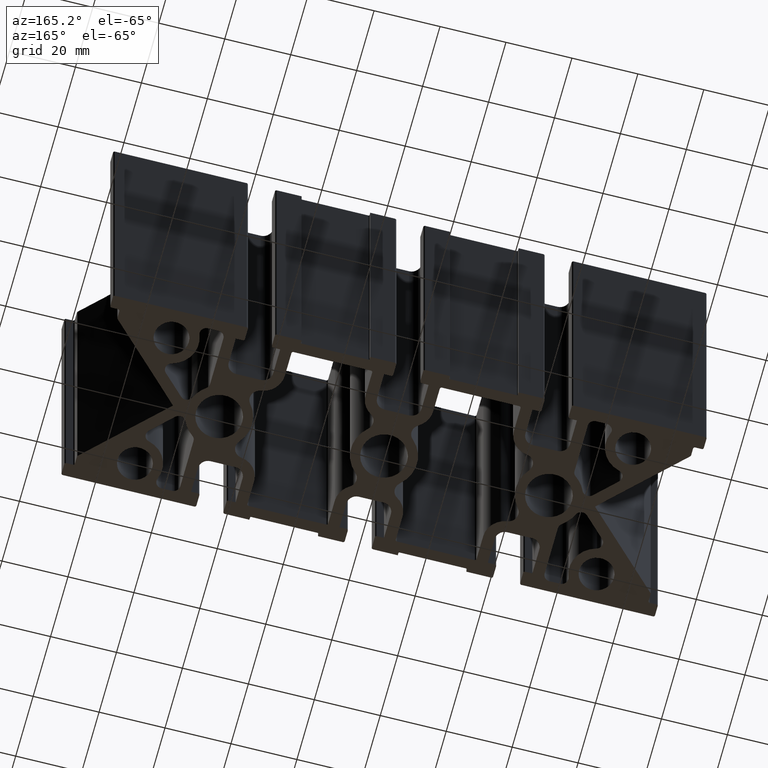
[diagram: clean part render]
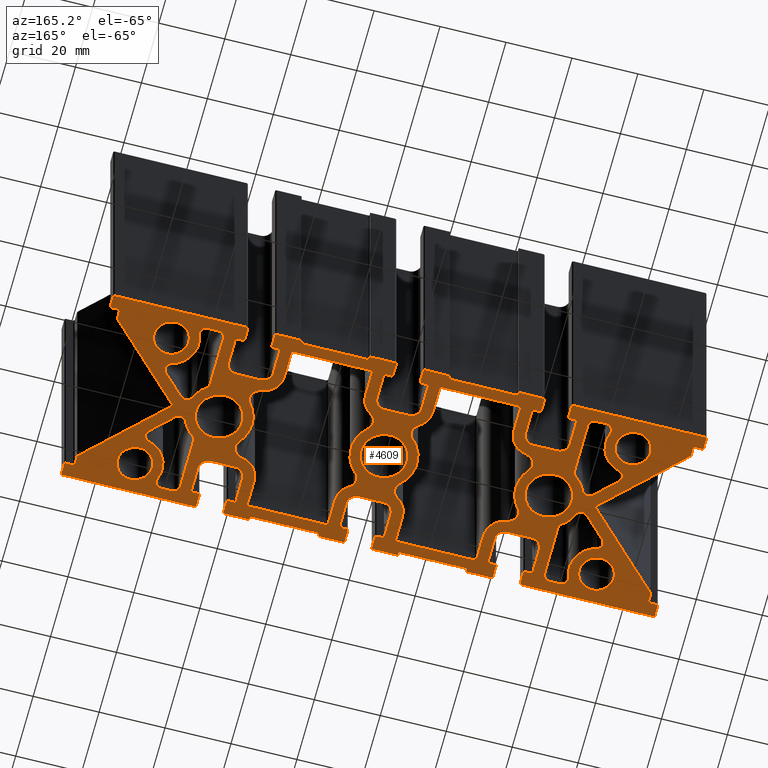
[diagram: same view with one face highlighted and labeled with its STEP entity id]
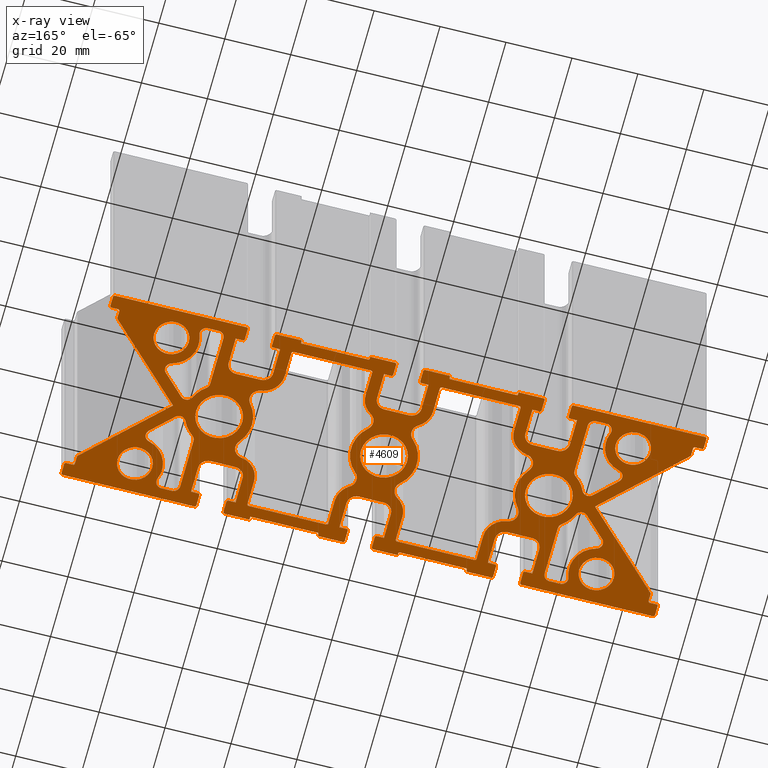
[diagram: x-ray of the same camera — body ghosted, the highlighted face saturated]
A machine part, auxiliary view. The second image highlights one B-rep face of the part: STEP entity #4609.
The next image is the same camera in x-ray: the body ghosted, the highlighted face saturated — about 0% of this face is hidden behind the body in this view.
In plain terms, the highlighted planar face has unit normal (0, 0, 1).
Its self-contained STEP definition (entity closure, byte-faithful):
#28=FACE_BOUND('',#596,.T.);
#29=FACE_BOUND('',#597,.T.);
#30=FACE_BOUND('',#598,.T.);
#31=FACE_BOUND('',#599,.T.);
#32=FACE_BOUND('',#600,.T.);
#33=FACE_BOUND('',#601,.T.);
#34=FACE_BOUND('',#602,.T.);
#35=FACE_BOUND('',#603,.T.);
#36=FACE_BOUND('',#604,.T.);
#37=FACE_BOUND('',#605,.T.);
#38=FACE_BOUND('',#606,.T.);
#39=FACE_BOUND('',#607,.T.);
#40=FACE_BOUND('',#608,.T.);
#131=PLANE('',#5098);
#351=FACE_OUTER_BOUND('',#595,.T.);
#595=EDGE_LOOP('',(#3943,#3944,#3945,#3946,#3947,#3948,#3949,#3950,#3951,
#3952,#3953,#3954,#3955,#3956,#3957,#3958,#3959,#3960,#3961,#3962,#3963,
#3964,#3965,#3966,#3967,#3968,#3969,#3970,#3971,#3972,#3973,#3974,#3975,
#3976,#3977,#3978,#3979,#3980,#3981,#3982,#3983,#3984,#3985,#3986,#3987,
#3988,#3989,#3990,#3991,#3992,#3993,#3994,#3995,#3996,#3997,#3998,#3999,
#4000,#4001,#4002,#4003,#4004,#4005,#4006,#4007,#4008,#4009,#4010,#4011,
#4012,#4013,#4014,#4015,#4016,#4017,#4018,#4019,#4020,#4021,#4022,#4023,
#4024,#4025,#4026,#4027,#4028,#4029,#4030,#4031,#4032,#4033,#4034,#4035,
#4036,#4037,#4038,#4039,#4040,#4041,#4042,#4043,#4044,#4045,#4046,#4047,
#4048,#4049,#4050,#4051,#4052,#4053,#4054,#4055,#4056,#4057,#4058,#4059,
#4060,#4061,#4062,#4063,#4064,#4065,#4066,#4067,#4068,#4069,#4070,#4071,
#4072,#4073,#4074,#4075,#4076,#4077,#4078,#4079,#4080,#4081,#4082,#4083,
#4084));
#596=EDGE_LOOP('',(#4085,#4086,#4087,#4088,#4089,#4090,#4091,#4092,#4093,
#4094,#4095,#4096,#4097,#4098,#4099,#4100,#4101,#4102,#4103,#4104));
#597=EDGE_LOOP('',(#4105,#4106,#4107,#4108,#4109,#4110,#4111,#4112,#4113,
#4114));
#598=EDGE_LOOP('',(#4115,#4116,#4117,#4118,#4119,#4120,#4121,#4122,#4123,
#4124));
#599=EDGE_LOOP('',(#4125,#4126,#4127,#4128,#4129,#4130,#4131,#4132,#4133,
#4134,#4135,#4136,#4137,#4138,#4139,#4140,#4141,#4142,#4143,#4144));
#600=EDGE_LOOP('',(#4145,#4146,#4147,#4148,#4149,#4150,#4151,#4152,#4153,
#4154));
#601=EDGE_LOOP('',(#4155,#4156,#4157,#4158,#4159,#4160,#4161,#4162,#4163,
#4164));
#602=EDGE_LOOP('',(#4165));
#603=EDGE_LOOP('',(#4166));
#604=EDGE_LOOP('',(#4167));
#605=EDGE_LOOP('',(#4168));
#606=EDGE_LOOP('',(#4169));
#607=EDGE_LOOP('',(#4170));
#608=EDGE_LOOP('',(#4171));
#641=LINE('',#6559,#1082);
#647=LINE('',#6583,#1088);
#651=LINE('',#6594,#1092);
#656=LINE('',#6613,#1097);
#660=LINE('',#6625,#1101);
#664=LINE('',#6637,#1105);
#773=LINE('',#7089,#1214);
#778=LINE('',#7105,#1219);
#781=LINE('',#7112,#1222);
#785=LINE('',#7127,#1226);
#788=LINE('',#7135,#1229);
#791=LINE('',#7143,#1232);
#799=LINE('',#7171,#1240);
#804=LINE('',#7187,#1245);
#807=LINE('',#7194,#1248);
#811=LINE('',#7207,#1252);
#814=LINE('',#7215,#1255);
#817=LINE('',#7223,#1258);
#825=LINE('',#7249,#1266);
#830=LINE('',#7265,#1271);
#833=LINE('',#7272,#1274);
#837=LINE('',#7287,#1278);
#840=LINE('',#7295,#1281);
#843=LINE('',#7303,#1284);
#856=LINE('',#7351,#1297);
#860=LINE('',#7360,#1301);
#865=LINE('',#7375,#1306);
#868=LINE('',#7383,#1309);
#872=LINE('',#7393,#1313);
#875=LINE('',#7401,#1316);
#878=LINE('',#7409,#1319);
#883=LINE('',#7420,#1324);
#885=LINE('',#7429,#1326);
#889=LINE('',#7439,#1330);
#894=LINE('',#7450,#1335);
#897=LINE('',#7459,#1338);
#900=LINE('',#7466,#1341);
#901=LINE('',#7468,#1342);
#902=LINE('',#7470,#1343);
#903=LINE('',#7472,#1344);
#904=LINE('',#7474,#1345);
#906=LINE('',#7478,#1347);
#907=LINE('',#7480,#1348);
#909=LINE('',#7484,#1350);
#913=LINE('',#7494,#1354);
#916=LINE('',#7502,#1357);
#922=LINE('',#7518,#1363);
#925=LINE('',#7526,#1366);
#929=LINE('',#7536,#1370);
#932=LINE('',#7544,#1373);
#935=LINE('',#7552,#1376);
#938=LINE('',#7561,#1379);
#942=LINE('',#7572,#1383);
#946=LINE('',#7582,#1387);
#949=LINE('',#7591,#1390);
#954=LINE('',#7602,#1395);
#956=LINE('',#7608,#1397);
#957=LINE('',#7610,#1398);
#958=LINE('',#7612,#1399);
#959=LINE('',#7614,#1400);
#960=LINE('',#7616,#1401);
#961=LINE('',#7619,#1402);
#963=LINE('',#7622,#1404);
#964=LINE('',#7624,#1405);
#968=LINE('',#7634,#1409);
#971=LINE('',#7642,#1412);
#974=LINE('',#7650,#1415);
#978=LINE('',#7660,#1419);
#981=LINE('',#7668,#1422);
#985=LINE('',#7678,#1426);
#988=LINE('',#7686,#1429);
#991=LINE('',#7694,#1432);
#994=LINE('',#7703,#1435);
#998=LINE('',#7714,#1439);
#1002=LINE('',#7724,#1443);
#1005=LINE('',#7733,#1446);
#1010=LINE('',#7744,#1451);
#1012=LINE('',#7750,#1453);
#1013=LINE('',#7752,#1454);
#1014=LINE('',#7754,#1455);
#1015=LINE('',#7756,#1456);
#1016=LINE('',#7758,#1457);
#1017=LINE('',#7761,#1458);
#1019=LINE('',#7764,#1460);
#1020=LINE('',#7767,#1461);
#1024=LINE('',#7777,#1465);
#1028=LINE('',#7786,#1469);
#1031=LINE('',#7794,#1472);
#1034=LINE('',#7803,#1475);
#1036=LINE('',#7806,#1477);
#1037=LINE('',#7808,#1478);
#1038=LINE('',#7810,#1479);
#1039=LINE('',#7814,#1480);
#1040=LINE('',#7818,#1481);
#1041=LINE('',#7820,#1482);
#1042=LINE('',#7824,#1483);
#1043=LINE('',#7828,#1484);
#1044=LINE('',#7830,#1485);
#1045=LINE('',#7834,#1486);
#1046=LINE('',#7837,#1487);
#1047=LINE('',#7839,#1488);
#1048=LINE('',#7841,#1489);
#1049=LINE('',#7845,#1490);
#1050=LINE('',#7849,#1491);
#1051=LINE('',#7853,#1492);
#1052=LINE('',#7857,#1493);
#1082=VECTOR('',#5164,10.);
#1088=VECTOR('',#5190,10.);
#1092=VECTOR('',#5202,10.);
#1097=VECTOR('',#5221,10.);
#1101=VECTOR('',#5233,10.);
#1105=VECTOR('',#5245,10.);
#1214=VECTOR('',#5602,10.);
#1219=VECTOR('',#5621,10.);
#1222=VECTOR('',#5630,10.);
#1226=VECTOR('',#5648,10.);
#1229=VECTOR('',#5657,10.);
#1232=VECTOR('',#5666,10.);
#1240=VECTOR('',#5700,10.);
#1245=VECTOR('',#5719,10.);
#1248=VECTOR('',#5728,10.);
#1252=VECTOR('',#5742,10.);
#1255=VECTOR('',#5751,10.);
#1258=VECTOR('',#5760,10.);
#1266=VECTOR('',#5790,10.);
#1271=VECTOR('',#5809,10.);
#1274=VECTOR('',#5818,10.);
#1278=VECTOR('',#5836,10.);
#1281=VECTOR('',#5845,10.);
#1284=VECTOR('',#5854,10.);
#1297=VECTOR('',#5913,10.);
#1301=VECTOR('',#5923,10.);
#1306=VECTOR('',#5938,10.);
#1309=VECTOR('',#5947,10.);
#1313=VECTOR('',#5957,10.);
#1316=VECTOR('',#5966,10.);
#1319=VECTOR('',#5975,10.);
#1324=VECTOR('',#5986,10.);
#1326=VECTOR('',#5998,10.);
#1330=VECTOR('',#6008,10.);
#1335=VECTOR('',#6019,10.);
#1338=VECTOR('',#6028,10.);
#1341=VECTOR('',#6037,10.);
#1342=VECTOR('',#6040,10.);
#1343=VECTOR('',#6043,10.);
#1344=VECTOR('',#6046,10.);
#1345=VECTOR('',#6049,10.);
#1347=VECTOR('',#6053,10.);
#1348=VECTOR('',#6056,10.);
#1350=VECTOR('',#6060,10.);
#1354=VECTOR('',#6070,10.);
#1357=VECTOR('',#6079,10.);
#1363=VECTOR('',#6095,10.);
#1366=VECTOR('',#6104,10.);
#1370=VECTOR('',#6114,10.);
#1373=VECTOR('',#6123,10.);
#1376=VECTOR('',#6132,10.);
#1379=VECTOR('',#6141,10.);
#1383=VECTOR('',#6155,10.);
#1387=VECTOR('',#6165,10.);
#1390=VECTOR('',#6174,10.);
#1395=VECTOR('',#6185,10.);
#1397=VECTOR('',#6193,10.);
#1398=VECTOR('',#6196,10.);
#1399=VECTOR('',#6199,10.);
#1400=VECTOR('',#6202,10.);
#1401=VECTOR('',#6205,10.);
#1402=VECTOR('',#6208,10.);
#1404=VECTOR('',#6212,10.);
#1405=VECTOR('',#6215,10.);
#1409=VECTOR('',#6225,10.);
#1412=VECTOR('',#6234,10.);
#1415=VECTOR('',#6243,10.);
#1419=VECTOR('',#6253,10.);
#1422=VECTOR('',#6262,10.);
#1426=VECTOR('',#6272,10.);
#1429=VECTOR('',#6281,10.);
#1432=VECTOR('',#6290,10.);
#1435=VECTOR('',#6299,10.);
#1439=VECTOR('',#6313,10.);
#1443=VECTOR('',#6323,10.);
#1446=VECTOR('',#6332,10.);
#1451=VECTOR('',#6343,10.);
#1453=VECTOR('',#6351,10.);
#1454=VECTOR('',#6354,10.);
#1455=VECTOR('',#6357,10.);
#1456=VECTOR('',#6360,10.);
#1457=VECTOR('',#6363,10.);
#1458=VECTOR('',#6366,10.);
#1460=VECTOR('',#6370,10.);
#1461=VECTOR('',#6373,10.);
#1465=VECTOR('',#6383,10.);
#1469=VECTOR('',#6393,10.);
#1472=VECTOR('',#6402,10.);
#1475=VECTOR('',#6411,10.);
#1477=VECTOR('',#6415,10.);
#1478=VECTOR('',#6416,10.);
#1479=VECTOR('',#6417,10.);
#1480=VECTOR('',#6420,10.);
#1481=VECTOR('',#6423,10.);
#1482=VECTOR('',#6424,10.);
#1483=VECTOR('',#6427,10.);
#1484=VECTOR('',#6430,10.);
#1485=VECTOR('',#6431,10.);
#1486=VECTOR('',#6434,10.);
#1487=VECTOR('',#6437,10.);
#1488=VECTOR('',#6438,10.);
#1489=VECTOR('',#6439,10.);
#1490=VECTOR('',#6442,10.);
#1491=VECTOR('',#6445,10.);
#1492=VECTOR('',#6448,10.);
#1493=VECTOR('',#6451,10.);
#1519=CIRCLE('',#4662,2.00000000000002);
#1521=CIRCLE('',#4665,10.);
#1523=CIRCLE('',#4668,2.);
#1525=CIRCLE('',#4672,2.00000000000001);
#1527=CIRCLE('',#4675,8.26);
#1529=CIRCLE('',#4678,2.00000000000001);
#1531=CIRCLE('',#4682,2.00000000000001);
#1533=CIRCLE('',#4686,3.);
#1535=CIRCLE('',#4689,6.5);
#1537=CIRCLE('',#4693,0.5);
#1539=CIRCLE('',#4697,0.499999999999998);
#1541=CIRCLE('',#4701,6.5);
#1543=CIRCLE('',#4704,3.);
#1655=CIRCLE('',#4818,2.00000000000002);
#1656=CIRCLE('',#4820,10.);
#1657=CIRCLE('',#4822,2.);
#1658=CIRCLE('',#4825,2.00000000000001);
#1659=CIRCLE('',#4827,8.26);
#1660=CIRCLE('',#4829,2.00000000000001);
#1661=CIRCLE('',#4832,2.00000000000001);
#1662=CIRCLE('',#4835,10.);
#1663=CIRCLE('',#4837,3.);
#1664=CIRCLE('',#4839,6.5);
#1665=CIRCLE('',#4842,0.5);
#1666=CIRCLE('',#4845,0.499999999999998);
#1667=CIRCLE('',#4848,6.5);
#1668=CIRCLE('',#4850,3.);
#1669=CIRCLE('',#4852,10.);
#1670=CIRCLE('',#4854,2.00000000000002);
#1671=CIRCLE('',#4856,10.);
#1672=CIRCLE('',#4858,2.);
#1673=CIRCLE('',#4861,2.00000000000001);
#1674=CIRCLE('',#4863,8.26);
#1675=CIRCLE('',#4865,2.00000000000001);
#1676=CIRCLE('',#4868,2.00000000000001);
#1677=CIRCLE('',#4871,3.);
#1678=CIRCLE('',#4873,6.5);
#1679=CIRCLE('',#4876,0.5);
#1680=CIRCLE('',#4879,0.499999999999998);
#1681=CIRCLE('',#4882,6.5);
#1682=CIRCLE('',#4884,3.);
#1683=CIRCLE('',#4886,2.00000000000002);
#1684=CIRCLE('',#4888,10.);
#1685=CIRCLE('',#4890,2.);
#1686=CIRCLE('',#4893,2.00000000000001);
#1687=CIRCLE('',#4895,8.26);
#1688=CIRCLE('',#4897,2.00000000000001);
#1689=CIRCLE('',#4900,2.00000000000001);
#1690=CIRCLE('',#4903,10.);
#1691=CIRCLE('',#4905,3.);
#1692=CIRCLE('',#4907,6.5);
#1693=CIRCLE('',#4910,0.499999999999998);
#1694=CIRCLE('',#4913,0.5);
#1695=CIRCLE('',#4916,6.5);
#1696=CIRCLE('',#4918,3.);
#1697=CIRCLE('',#4920,10.);
#1698=CIRCLE('',#4922,5.26);
#1699=CIRCLE('',#4924,5.26);
#1700=CIRCLE('',#4926,5.26);
#1701=CIRCLE('',#4928,5.26);
#1702=CIRCLE('',#4930,7.);
#1703=CIRCLE('',#4932,7.);
#1704=CIRCLE('',#4934,7.);
#1705=CIRCLE('',#4936,3.);
#1706=CIRCLE('',#4939,3.);
#1707=CIRCLE('',#4942,3.);
#1708=CIRCLE('',#4944,0.5);
#1709=CIRCLE('',#4947,0.5);
#1710=CIRCLE('',#4950,0.5);
#1711=CIRCLE('',#4953,0.5);
#1712=CIRCLE('',#4956,0.5);
#1713=CIRCLE('',#4959,0.5);
#1714=CIRCLE('',#4962,0.5);
#1715=CIRCLE('',#4964,0.5);
#1716=CIRCLE('',#4967,0.5);
#1717=CIRCLE('',#4970,0.5);
#1718=CIRCLE('',#4973,0.25);
#1719=CIRCLE('',#4976,0.25);
#1720=CIRCLE('',#4986,3.);
#1721=CIRCLE('',#4989,3.);
#1722=CIRCLE('',#4992,3.);
#1723=CIRCLE('',#4994,0.5);
#1724=CIRCLE('',#4997,0.5);
#1725=CIRCLE('',#5000,0.5);
#1726=CIRCLE('',#5003,0.5);
#1727=CIRCLE('',#5006,0.5);
#1728=CIRCLE('',#5009,0.5);
#1729=CIRCLE('',#5012,0.5);
#1730=CIRCLE('',#5014,0.5);
#1731=CIRCLE('',#5017,0.5);
#1732=CIRCLE('',#5020,0.5);
#1733=CIRCLE('',#5023,0.25);
#1734=CIRCLE('',#5026,0.25);
#1735=CIRCLE('',#5036,3.);
#1736=CIRCLE('',#5039,3.);
#1737=CIRCLE('',#5042,3.);
#1738=CIRCLE('',#5045,0.5);
#1739=CIRCLE('',#5048,0.5);
#1740=CIRCLE('',#5051,0.5);
#1741=CIRCLE('',#5054,0.5);
#1742=CIRCLE('',#5057,0.5);
#1743=CIRCLE('',#5060,0.5);
#1744=CIRCLE('',#5063,0.5);
#1745=CIRCLE('',#5065,0.5);
#1746=CIRCLE('',#5068,0.5);
#1747=CIRCLE('',#5071,0.5);
#1748=CIRCLE('',#5074,0.25);
#1749=CIRCLE('',#5077,0.25);
#1750=CIRCLE('',#5087,3.);
#1751=CIRCLE('',#5090,3.);
#1752=CIRCLE('',#5093,3.);
#1753=CIRCLE('',#5096,0.5);
#1754=CIRCLE('',#5099,0.5);
#1755=CIRCLE('',#5100,0.5);
#1756=CIRCLE('',#5101,0.25);
#1757=CIRCLE('',#5102,0.25);
#1758=CIRCLE('',#5103,0.5);
#1759=CIRCLE('',#5104,0.5);
#1760=CIRCLE('',#5105,0.5);
#1761=CIRCLE('',#5106,0.5);
#1762=CIRCLE('',#5107,0.5);
#1763=CIRCLE('',#5108,0.5);
#1764=CIRCLE('',#5109,0.5);
#1765=VERTEX_POINT('',#6537);
#1766=VERTEX_POINT('',#6538);
#1769=VERTEX_POINT('',#6546);
#1771=VERTEX_POINT('',#6552);
#1773=VERTEX_POINT('',#6558);
#1775=VERTEX_POINT('',#6564);
#1777=VERTEX_POINT('',#6570);
#1779=VERTEX_POINT('',#6576);
#1781=VERTEX_POINT('',#6582);
#1783=VERTEX_POINT('',#6588);
#1785=VERTEX_POINT('',#6597);
#1786=VERTEX_POINT('',#6598);
#1789=VERTEX_POINT('',#6606);
#1791=VERTEX_POINT('',#6612);
#1793=VERTEX_POINT('',#6618);
#1795=VERTEX_POINT('',#6624);
#1797=VERTEX_POINT('',#6630);
#1799=VERTEX_POINT('',#6636);
#1801=VERTEX_POINT('',#6642);
#1803=VERTEX_POINT('',#6648);
#2014=VERTEX_POINT('',#7074);
#2015=VERTEX_POINT('',#7075);
#2016=VERTEX_POINT('',#7080);
#2017=VERTEX_POINT('',#7084);
#2018=VERTEX_POINT('',#7088);
#2019=VERTEX_POINT('',#7092);
#2020=VERTEX_POINT('',#7096);
#2021=VERTEX_POINT('',#7100);
#2022=VERTEX_POINT('',#7104);
#2023=VERTEX_POINT('',#7108);
#2024=VERTEX_POINT('',#7114);
#2025=VERTEX_POINT('',#7118);
#2026=VERTEX_POINT('',#7122);
#2027=VERTEX_POINT('',#7126);
#2028=VERTEX_POINT('',#7130);
#2029=VERTEX_POINT('',#7134);
#2030=VERTEX_POINT('',#7138);
#2031=VERTEX_POINT('',#7142);
#2032=VERTEX_POINT('',#7146);
#2033=VERTEX_POINT('',#7150);
#2034=VERTEX_POINT('',#7156);
#2035=VERTEX_POINT('',#7157);
#2036=VERTEX_POINT('',#7162);
#2037=VERTEX_POINT('',#7166);
#2038=VERTEX_POINT('',#7170);
#2039=VERTEX_POINT('',#7174);
#2040=VERTEX_POINT('',#7178);
#2041=VERTEX_POINT('',#7182);
#2042=VERTEX_POINT('',#7186);
#2043=VERTEX_POINT('',#7190);
#2044=VERTEX_POINT('',#7196);
#2045=VERTEX_POINT('',#7197);
#2046=VERTEX_POINT('',#7202);
#2047=VERTEX_POINT('',#7206);
#2048=VERTEX_POINT('',#7210);
#2049=VERTEX_POINT('',#7214);
#2050=VERTEX_POINT('',#7218);
#2051=VERTEX_POINT('',#7222);
#2052=VERTEX_POINT('',#7226);
#2053=VERTEX_POINT('',#7230);
#2054=VERTEX_POINT('',#7234);
#2055=VERTEX_POINT('',#7235);
#2056=VERTEX_POINT('',#7240);
#2057=VERTEX_POINT('',#7244);
#2058=VERTEX_POINT('',#7248);
#2059=VERTEX_POINT('',#7252);
#2060=VERTEX_POINT('',#7256);
#2061=VERTEX_POINT('',#7260);
#2062=VERTEX_POINT('',#7264);
#2063=VERTEX_POINT('',#7268);
#2064=VERTEX_POINT('',#7274);
#2065=VERTEX_POINT('',#7278);
#2066=VERTEX_POINT('',#7282);
#2067=VERTEX_POINT('',#7286);
#2068=VERTEX_POINT('',#7290);
#2069=VERTEX_POINT('',#7294);
#2070=VERTEX_POINT('',#7298);
#2071=VERTEX_POINT('',#7302);
#2072=VERTEX_POINT('',#7306);
#2073=VERTEX_POINT('',#7310);
#2074=VERTEX_POINT('',#7316);
#2075=VERTEX_POINT('',#7320);
#2076=VERTEX_POINT('',#7324);
#2077=VERTEX_POINT('',#7328);
#2078=VERTEX_POINT('',#7332);
#2079=VERTEX_POINT('',#7336);
#2080=VERTEX_POINT('',#7340);
#2081=VERTEX_POINT('',#7344);
#2082=VERTEX_POINT('',#7345);
#2083=VERTEX_POINT('',#7350);
#2084=VERTEX_POINT('',#7354);
#2085=VERTEX_POINT('',#7355);
#2086=VERTEX_POINT('',#7362);
#2087=VERTEX_POINT('',#7363);
#2088=VERTEX_POINT('',#7368);
#2089=VERTEX_POINT('',#7370);
#2090=VERTEX_POINT('',#7374);
#2091=VERTEX_POINT('',#7378);
#2092=VERTEX_POINT('',#7382);
#2093=VERTEX_POINT('',#7386);
#2094=VERTEX_POINT('',#7388);
#2095=VERTEX_POINT('',#7392);
#2096=VERTEX_POINT('',#7396);
#2097=VERTEX_POINT('',#7400);
#2098=VERTEX_POINT('',#7404);
#2099=VERTEX_POINT('',#7408);
#2100=VERTEX_POINT('',#7412);
#2101=VERTEX_POINT('',#7414);
#2102=VERTEX_POINT('',#7418);
#2103=VERTEX_POINT('',#7424);
#2104=VERTEX_POINT('',#7428);
#2105=VERTEX_POINT('',#7432);
#2106=VERTEX_POINT('',#7434);
#2107=VERTEX_POINT('',#7438);
#2108=VERTEX_POINT('',#7442);
#2109=VERTEX_POINT('',#7444);
#2110=VERTEX_POINT('',#7448);
#2111=VERTEX_POINT('',#7452);
#2112=VERTEX_POINT('',#7453);
#2113=VERTEX_POINT('',#7458);
#2114=VERTEX_POINT('',#7462);
#2115=VERTEX_POINT('',#7476);
#2116=VERTEX_POINT('',#7482);
#2117=VERTEX_POINT('',#7486);
#2118=VERTEX_POINT('',#7487);
#2119=VERTEX_POINT('',#7492);
#2120=VERTEX_POINT('',#7496);
#2121=VERTEX_POINT('',#7497);
#2122=VERTEX_POINT('',#7504);
#2123=VERTEX_POINT('',#7505);
#2124=VERTEX_POINT('',#7510);
#2125=VERTEX_POINT('',#7512);
#2126=VERTEX_POINT('',#7516);
#2127=VERTEX_POINT('',#7520);
#2128=VERTEX_POINT('',#7524);
#2129=VERTEX_POINT('',#7528);
#2130=VERTEX_POINT('',#7530);
#2131=VERTEX_POINT('',#7534);
#2132=VERTEX_POINT('',#7538);
#2133=VERTEX_POINT('',#7542);
#2134=VERTEX_POINT('',#7546);
#2135=VERTEX_POINT('',#7550);
#2136=VERTEX_POINT('',#7554);
#2137=VERTEX_POINT('',#7556);
#2138=VERTEX_POINT('',#7560);
#2139=VERTEX_POINT('',#7566);
#2140=VERTEX_POINT('',#7570);
#2141=VERTEX_POINT('',#7574);
#2142=VERTEX_POINT('',#7576);
#2143=VERTEX_POINT('',#7580);
#2144=VERTEX_POINT('',#7584);
#2145=VERTEX_POINT('',#7586);
#2146=VERTEX_POINT('',#7590);
#2147=VERTEX_POINT('',#7594);
#2148=VERTEX_POINT('',#7595);
#2149=VERTEX_POINT('',#7600);
#2150=VERTEX_POINT('',#7604);
#2151=VERTEX_POINT('',#7618);
#2152=VERTEX_POINT('',#7626);
#2153=VERTEX_POINT('',#7627);
#2154=VERTEX_POINT('',#7632);
#2155=VERTEX_POINT('',#7636);
#2156=VERTEX_POINT('',#7637);
#2157=VERTEX_POINT('',#7644);
#2158=VERTEX_POINT('',#7645);
#2159=VERTEX_POINT('',#7652);
#2160=VERTEX_POINT('',#7654);
#2161=VERTEX_POINT('',#7658);
#2162=VERTEX_POINT('',#7662);
#2163=VERTEX_POINT('',#7666);
#2164=VERTEX_POINT('',#7670);
#2165=VERTEX_POINT('',#7672);
#2166=VERTEX_POINT('',#7676);
#2167=VERTEX_POINT('',#7680);
#2168=VERTEX_POINT('',#7684);
#2169=VERTEX_POINT('',#7688);
#2170=VERTEX_POINT('',#7692);
#2171=VERTEX_POINT('',#7696);
#2172=VERTEX_POINT('',#7698);
#2173=VERTEX_POINT('',#7702);
#2174=VERTEX_POINT('',#7708);
#2175=VERTEX_POINT('',#7712);
#2176=VERTEX_POINT('',#7716);
#2177=VERTEX_POINT('',#7718);
#2178=VERTEX_POINT('',#7722);
#2179=VERTEX_POINT('',#7726);
#2180=VERTEX_POINT('',#7728);
#2181=VERTEX_POINT('',#7732);
#2182=VERTEX_POINT('',#7736);
#2183=VERTEX_POINT('',#7737);
#2184=VERTEX_POINT('',#7742);
#2185=VERTEX_POINT('',#7746);
#2186=VERTEX_POINT('',#7760);
#2187=VERTEX_POINT('',#7766);
#2188=VERTEX_POINT('',#7770);
#2189=VERTEX_POINT('',#7771);
#2190=VERTEX_POINT('',#7776);
#2191=VERTEX_POINT('',#7780);
#2192=VERTEX_POINT('',#7781);
#2193=VERTEX_POINT('',#7788);
#2194=VERTEX_POINT('',#7789);
#2195=VERTEX_POINT('',#7796);
#2196=VERTEX_POINT('',#7798);
#2197=VERTEX_POINT('',#7802);
#2198=VERTEX_POINT('',#7807);
#2199=VERTEX_POINT('',#7809);
#2200=VERTEX_POINT('',#7811);
#2201=VERTEX_POINT('',#7813);
#2202=VERTEX_POINT('',#7815);
#2203=VERTEX_POINT('',#7817);
#2204=VERTEX_POINT('',#7819);
#2205=VERTEX_POINT('',#7821);
#2206=VERTEX_POINT('',#7823);
#2207=VERTEX_POINT('',#7825);
#2208=VERTEX_POINT('',#7827);
#2209=VERTEX_POINT('',#7829);
#2210=VERTEX_POINT('',#7831);
#2211=VERTEX_POINT('',#7833);
#2212=VERTEX_POINT('',#7835);
#2213=VERTEX_POINT('',#7838);
#2214=VERTEX_POINT('',#7840);
#2215=VERTEX_POINT('',#7842);
#2216=VERTEX_POINT('',#7844);
#2217=VERTEX_POINT('',#7846);
#2218=VERTEX_POINT('',#7848);
#2219=VERTEX_POINT('',#7850);
#2220=VERTEX_POINT('',#7852);
#2221=VERTEX_POINT('',#7854);
#2222=VERTEX_POINT('',#7856);
#2223=EDGE_CURVE('',#1765,#1766,#1519,.T.);
#2227=EDGE_CURVE('',#1766,#1769,#1521,.T.);
#2230=EDGE_CURVE('',#1769,#1771,#1523,.T.);
#2233=EDGE_CURVE('',#1771,#1773,#641,.T.);
#2236=EDGE_CURVE('',#1773,#1775,#1525,.T.);
#2239=EDGE_CURVE('',#1775,#1777,#1527,.T.);
#2242=EDGE_CURVE('',#1777,#1779,#1529,.T.);
#2245=EDGE_CURVE('',#1779,#1781,#647,.T.);
#2248=EDGE_CURVE('',#1781,#1783,#1531,.T.);
#2251=EDGE_CURVE('',#1783,#1765,#651,.T.);
#2253=EDGE_CURVE('',#1785,#1786,#1533,.T.);
#2257=EDGE_CURVE('',#1789,#1785,#1535,.T.);
#2260=EDGE_CURVE('',#1791,#1789,#656,.T.);
#2263=EDGE_CURVE('',#1793,#1791,#1537,.T.);
#2266=EDGE_CURVE('',#1795,#1793,#660,.T.);
#2269=EDGE_CURVE('',#1797,#1795,#1539,.T.);
#2272=EDGE_CURVE('',#1799,#1797,#664,.T.);
#2275=EDGE_CURVE('',#1801,#1799,#1541,.T.);
#2278=EDGE_CURVE('',#1803,#1801,#1543,.T.);
#2491=EDGE_CURVE('',#2014,#2015,#1655,.T.);
#2494=EDGE_CURVE('',#2016,#2014,#1656,.T.);
#2496=EDGE_CURVE('',#2017,#2016,#1657,.T.);
#2498=EDGE_CURVE('',#2018,#2017,#773,.T.);
#2500=EDGE_CURVE('',#2019,#2018,#1658,.T.);
#2502=EDGE_CURVE('',#2020,#2019,#1659,.T.);
#2504=EDGE_CURVE('',#2021,#2020,#1660,.T.);
#2506=EDGE_CURVE('',#2022,#2021,#778,.T.);
#2508=EDGE_CURVE('',#2023,#2022,#1661,.T.);
#2510=EDGE_CURVE('',#2015,#2023,#781,.T.);
#2511=EDGE_CURVE('',#1786,#2024,#1662,.T.);
#2513=EDGE_CURVE('',#2024,#2025,#1663,.T.);
#2515=EDGE_CURVE('',#2025,#2026,#1664,.T.);
#2517=EDGE_CURVE('',#2026,#2027,#785,.T.);
#2519=EDGE_CURVE('',#2027,#2028,#1665,.T.);
#2521=EDGE_CURVE('',#2028,#2029,#788,.T.);
#2523=EDGE_CURVE('',#2029,#2030,#1666,.T.);
#2525=EDGE_CURVE('',#2030,#2031,#791,.T.);
#2527=EDGE_CURVE('',#2031,#2032,#1667,.T.);
#2529=EDGE_CURVE('',#2032,#2033,#1668,.T.);
#2531=EDGE_CURVE('',#2033,#1803,#1669,.T.);
#2532=EDGE_CURVE('',#2034,#2035,#1670,.T.);
#2535=EDGE_CURVE('',#2036,#2034,#1671,.T.);
#2537=EDGE_CURVE('',#2037,#2036,#1672,.T.);
#2539=EDGE_CURVE('',#2038,#2037,#799,.T.);
#2541=EDGE_CURVE('',#2039,#2038,#1673,.T.);
#2543=EDGE_CURVE('',#2040,#2039,#1674,.T.);
#2545=EDGE_CURVE('',#2041,#2040,#1675,.T.);
#2547=EDGE_CURVE('',#2042,#2041,#804,.T.);
#2549=EDGE_CURVE('',#2043,#2042,#1676,.T.);
#2551=EDGE_CURVE('',#2035,#2043,#807,.T.);
#2552=EDGE_CURVE('',#2044,#2045,#1677,.T.);
#2555=EDGE_CURVE('',#2045,#2046,#1678,.T.);
#2557=EDGE_CURVE('',#2046,#2047,#811,.T.);
#2559=EDGE_CURVE('',#2047,#2048,#1679,.T.);
#2561=EDGE_CURVE('',#2048,#2049,#814,.T.);
#2563=EDGE_CURVE('',#2049,#2050,#1680,.T.);
#2565=EDGE_CURVE('',#2050,#2051,#817,.T.);
#2567=EDGE_CURVE('',#2051,#2052,#1681,.T.);
#2569=EDGE_CURVE('',#2052,#2053,#1682,.T.);
#2571=EDGE_CURVE('',#2054,#2055,#1683,.T.);
#2574=EDGE_CURVE('',#2055,#2056,#1684,.T.);
#2576=EDGE_CURVE('',#2056,#2057,#1685,.T.);
#2578=EDGE_CURVE('',#2057,#2058,#825,.T.);
#2580=EDGE_CURVE('',#2058,#2059,#1686,.T.);
#2582=EDGE_CURVE('',#2059,#2060,#1687,.T.);
#2584=EDGE_CURVE('',#2060,#2061,#1688,.T.);
#2586=EDGE_CURVE('',#2061,#2062,#830,.T.);
#2588=EDGE_CURVE('',#2062,#2063,#1689,.T.);
#2590=EDGE_CURVE('',#2063,#2054,#833,.T.);
#2591=EDGE_CURVE('',#2053,#2064,#1690,.T.);
#2593=EDGE_CURVE('',#2064,#2065,#1691,.T.);
#2595=EDGE_CURVE('',#2065,#2066,#1692,.T.);
#2597=EDGE_CURVE('',#2066,#2067,#837,.T.);
#2599=EDGE_CURVE('',#2067,#2068,#1693,.T.);
#2601=EDGE_CURVE('',#2068,#2069,#840,.T.);
#2603=EDGE_CURVE('',#2069,#2070,#1694,.T.);
#2605=EDGE_CURVE('',#2070,#2071,#843,.T.);
#2607=EDGE_CURVE('',#2071,#2072,#1695,.T.);
#2609=EDGE_CURVE('',#2072,#2073,#1696,.T.);
#2611=EDGE_CURVE('',#2073,#2044,#1697,.T.);
#2613=EDGE_CURVE('',#2074,#2074,#1698,.T.);
#2615=EDGE_CURVE('',#2075,#2075,#1699,.T.);
#2617=EDGE_CURVE('',#2076,#2076,#1700,.T.);
#2619=EDGE_CURVE('',#2077,#2077,#1701,.T.);
#2621=EDGE_CURVE('',#2078,#2078,#1702,.T.);
#2623=EDGE_CURVE('',#2079,#2079,#1703,.T.);
#2625=EDGE_CURVE('',#2080,#2080,#1704,.T.);
#2626=EDGE_CURVE('',#2081,#2082,#1705,.T.);
#2629=EDGE_CURVE('',#2082,#2083,#856,.T.);
#2631=EDGE_CURVE('',#2084,#2085,#1706,.T.);
#2634=EDGE_CURVE('',#2085,#2081,#860,.T.);
#2635=EDGE_CURVE('',#2086,#2087,#1707,.T.);
#2639=EDGE_CURVE('',#2088,#2089,#1708,.T.);
#2641=EDGE_CURVE('',#2089,#2090,#865,.T.);
#2643=EDGE_CURVE('',#2090,#2091,#1709,.T.);
#2645=EDGE_CURVE('',#2091,#2092,#868,.T.);
#2648=EDGE_CURVE('',#2093,#2094,#1710,.T.);
#2650=EDGE_CURVE('',#2094,#2095,#872,.T.);
#2652=EDGE_CURVE('',#2092,#2096,#1711,.T.);
#2654=EDGE_CURVE('',#2096,#2097,#875,.T.);
#2656=EDGE_CURVE('',#2097,#2098,#1712,.T.);
#2658=EDGE_CURVE('',#2098,#2099,#878,.T.);
#2661=EDGE_CURVE('',#2100,#2101,#1713,.T.);
#2664=EDGE_CURVE('',#2102,#2100,#883,.T.);
#2665=EDGE_CURVE('',#2099,#2102,#1714,.T.);
#2666=EDGE_CURVE('',#2095,#2103,#1715,.T.);
#2668=EDGE_CURVE('',#2103,#2104,#885,.T.);
#2671=EDGE_CURVE('',#2105,#2106,#1716,.T.);
#2673=EDGE_CURVE('',#2106,#2107,#889,.T.);
#2676=EDGE_CURVE('',#2108,#2109,#1717,.T.);
#2679=EDGE_CURVE('',#2110,#2108,#894,.T.);
#2680=EDGE_CURVE('',#2111,#2112,#1718,.T.);
#2683=EDGE_CURVE('',#2112,#2113,#897,.T.);
#2685=EDGE_CURVE('',#2113,#2114,#1719,.T.);
#2687=EDGE_CURVE('',#2114,#2110,#900,.T.);
#2688=EDGE_CURVE('',#2107,#2086,#901,.T.);
#2689=EDGE_CURVE('',#2109,#2105,#902,.T.);
#2690=EDGE_CURVE('',#2104,#2111,#903,.T.);
#2691=EDGE_CURVE('',#2083,#2093,#904,.T.);
#2693=EDGE_CURVE('',#2115,#2084,#906,.T.);
#2694=EDGE_CURVE('',#2101,#2115,#907,.T.);
#2696=EDGE_CURVE('',#2116,#2088,#909,.T.);
#2697=EDGE_CURVE('',#2117,#2118,#1720,.T.);
#2701=EDGE_CURVE('',#2118,#2119,#913,.T.);
#2702=EDGE_CURVE('',#2120,#2121,#1721,.T.);
#2705=EDGE_CURVE('',#2121,#2117,#916,.T.);
#2706=EDGE_CURVE('',#2122,#2123,#1722,.T.);
#2710=EDGE_CURVE('',#2125,#2124,#1723,.T.);
#2713=EDGE_CURVE('',#2124,#2126,#922,.T.);
#2714=EDGE_CURVE('',#2126,#2127,#1724,.T.);
#2717=EDGE_CURVE('',#2127,#2128,#925,.T.);
#2719=EDGE_CURVE('',#2130,#2129,#1725,.T.);
#2722=EDGE_CURVE('',#2129,#2131,#929,.T.);
#2724=EDGE_CURVE('',#2128,#2132,#1726,.T.);
#2726=EDGE_CURVE('',#2132,#2133,#932,.T.);
#2728=EDGE_CURVE('',#2133,#2134,#1727,.T.);
#2730=EDGE_CURVE('',#2134,#2135,#935,.T.);
#2732=EDGE_CURVE('',#2137,#2136,#1728,.T.);
#2734=EDGE_CURVE('',#2138,#2137,#938,.T.);
#2736=EDGE_CURVE('',#2135,#2138,#1729,.T.);
#2738=EDGE_CURVE('',#2131,#2139,#1730,.T.);
#2740=EDGE_CURVE('',#2139,#2140,#942,.T.);
#2742=EDGE_CURVE('',#2142,#2141,#1731,.T.);
#2745=EDGE_CURVE('',#2141,#2143,#946,.T.);
#2747=EDGE_CURVE('',#2145,#2144,#1732,.T.);
#2749=EDGE_CURVE('',#2146,#2145,#949,.T.);
#2751=EDGE_CURVE('',#2147,#2148,#1733,.T.);
#2755=EDGE_CURVE('',#2148,#2149,#954,.T.);
#2756=EDGE_CURVE('',#2149,#2150,#1734,.T.);
#2758=EDGE_CURVE('',#2150,#2146,#956,.T.);
#2759=EDGE_CURVE('',#2143,#2122,#957,.T.);
#2760=EDGE_CURVE('',#2144,#2142,#958,.T.);
#2761=EDGE_CURVE('',#2140,#2147,#959,.T.);
#2762=EDGE_CURVE('',#2119,#2130,#960,.T.);
#2763=EDGE_CURVE('',#2151,#2120,#961,.T.);
#2765=EDGE_CURVE('',#2136,#2151,#963,.T.);
#2766=EDGE_CURVE('',#2116,#2125,#964,.T.);
#2767=EDGE_CURVE('',#2152,#2153,#1735,.T.);
#2771=EDGE_CURVE('',#2153,#2154,#968,.T.);
#2772=EDGE_CURVE('',#2155,#2156,#1736,.T.);
#2775=EDGE_CURVE('',#2156,#2152,#971,.T.);
#2776=EDGE_CURVE('',#2157,#2158,#1737,.T.);
#2779=EDGE_CURVE('',#2158,#2087,#974,.T.);
#2781=EDGE_CURVE('',#2160,#2159,#1738,.T.);
#2784=EDGE_CURVE('',#2159,#2161,#978,.T.);
#2785=EDGE_CURVE('',#2161,#2162,#1739,.T.);
#2788=EDGE_CURVE('',#2162,#2163,#981,.T.);
#2790=EDGE_CURVE('',#2165,#2164,#1740,.T.);
#2793=EDGE_CURVE('',#2164,#2166,#985,.T.);
#2795=EDGE_CURVE('',#2163,#2167,#1741,.T.);
#2797=EDGE_CURVE('',#2167,#2168,#988,.T.);
#2799=EDGE_CURVE('',#2168,#2169,#1742,.T.);
#2801=EDGE_CURVE('',#2169,#2170,#991,.T.);
#2803=EDGE_CURVE('',#2172,#2171,#1743,.T.);
#2805=EDGE_CURVE('',#2173,#2172,#994,.T.);
#2807=EDGE_CURVE('',#2170,#2173,#1744,.T.);
#2809=EDGE_CURVE('',#2166,#2174,#1745,.T.);
#2811=EDGE_CURVE('',#2174,#2175,#998,.T.);
#2813=EDGE_CURVE('',#2177,#2176,#1746,.T.);
#2816=EDGE_CURVE('',#2176,#2178,#1002,.T.);
#2818=EDGE_CURVE('',#2180,#2179,#1747,.T.);
#2820=EDGE_CURVE('',#2181,#2180,#1005,.T.);
#2822=EDGE_CURVE('',#2182,#2183,#1748,.T.);
#2826=EDGE_CURVE('',#2183,#2184,#1010,.T.);
#2827=EDGE_CURVE('',#2184,#2185,#1749,.T.);
#2829=EDGE_CURVE('',#2185,#2181,#1012,.T.);
#2830=EDGE_CURVE('',#2178,#2157,#1013,.T.);
#2831=EDGE_CURVE('',#2179,#2177,#1014,.T.);
#2832=EDGE_CURVE('',#2175,#2182,#1015,.T.);
#2833=EDGE_CURVE('',#2154,#2165,#1016,.T.);
#2834=EDGE_CURVE('',#2186,#2155,#1017,.T.);
#2836=EDGE_CURVE('',#2171,#2186,#1019,.T.);
#2837=EDGE_CURVE('',#2187,#2160,#1020,.T.);
#2839=EDGE_CURVE('',#2188,#2189,#1750,.T.);
#2842=EDGE_CURVE('',#2189,#2190,#1024,.T.);
#2844=EDGE_CURVE('',#2191,#2192,#1751,.T.);
#2847=EDGE_CURVE('',#2192,#2188,#1028,.T.);
#2848=EDGE_CURVE('',#2193,#2194,#1752,.T.);
#2851=EDGE_CURVE('',#2194,#2123,#1031,.T.);
#2853=EDGE_CURVE('',#2195,#2196,#1753,.T.);
#2855=EDGE_CURVE('',#2196,#2197,#1034,.T.);
#2857=EDGE_CURVE('',#2187,#2195,#1036,.T.);
#2858=EDGE_CURVE('',#2198,#2193,#1037,.T.);
#2859=EDGE_CURVE('',#2199,#2198,#1038,.T.);
#2860=EDGE_CURVE('',#2200,#2199,#1754,.T.);
#2861=EDGE_CURVE('',#2201,#2200,#1039,.T.);
#2862=EDGE_CURVE('',#2202,#2201,#1755,.T.);
#2863=EDGE_CURVE('',#2203,#2202,#1040,.T.);
#2864=EDGE_CURVE('',#2204,#2203,#1041,.T.);
#2865=EDGE_CURVE('',#2205,#2204,#1756,.T.);
#2866=EDGE_CURVE('',#2206,#2205,#1042,.T.);
#2867=EDGE_CURVE('',#2207,#2206,#1757,.T.);
#2868=EDGE_CURVE('',#2208,#2207,#1043,.T.);
#2869=EDGE_CURVE('',#2209,#2208,#1044,.T.);
#2870=EDGE_CURVE('',#2210,#2209,#1758,.T.);
#2871=EDGE_CURVE('',#2211,#2210,#1045,.T.);
#2872=EDGE_CURVE('',#2212,#2211,#1759,.T.);
#2873=EDGE_CURVE('',#2190,#2212,#1046,.T.);
#2874=EDGE_CURVE('',#2213,#2191,#1047,.T.);
#2875=EDGE_CURVE('',#2214,#2213,#1048,.T.);
#2876=EDGE_CURVE('',#2215,#2214,#1760,.T.);
#2877=EDGE_CURVE('',#2216,#2215,#1049,.T.);
#2878=EDGE_CURVE('',#2217,#2216,#1761,.T.);
#2879=EDGE_CURVE('',#2218,#2217,#1050,.T.);
#2880=EDGE_CURVE('',#2219,#2218,#1762,.T.);
#2881=EDGE_CURVE('',#2220,#2219,#1051,.T.);
#2882=EDGE_CURVE('',#2221,#2220,#1763,.T.);
#2883=EDGE_CURVE('',#2222,#2221,#1052,.T.);
#2884=EDGE_CURVE('',#2197,#2222,#1764,.T.);
#3943=ORIENTED_EDGE('',*,*,#2853,.F.);
#3944=ORIENTED_EDGE('',*,*,#2857,.F.);
#3945=ORIENTED_EDGE('',*,*,#2837,.T.);
#3946=ORIENTED_EDGE('',*,*,#2781,.T.);
#3947=ORIENTED_EDGE('',*,*,#2784,.T.);
#3948=ORIENTED_EDGE('',*,*,#2785,.T.);
#3949=ORIENTED_EDGE('',*,*,#2788,.T.);
#3950=ORIENTED_EDGE('',*,*,#2795,.T.);
#3951=ORIENTED_EDGE('',*,*,#2797,.T.);
#3952=ORIENTED_EDGE('',*,*,#2799,.T.);
#3953=ORIENTED_EDGE('',*,*,#2801,.T.);
#3954=ORIENTED_EDGE('',*,*,#2807,.T.);
#3955=ORIENTED_EDGE('',*,*,#2805,.T.);
#3956=ORIENTED_EDGE('',*,*,#2803,.T.);
#3957=ORIENTED_EDGE('',*,*,#2836,.T.);
#3958=ORIENTED_EDGE('',*,*,#2834,.T.);
#3959=ORIENTED_EDGE('',*,*,#2772,.T.);
#3960=ORIENTED_EDGE('',*,*,#2775,.T.);
#3961=ORIENTED_EDGE('',*,*,#2767,.T.);
#3962=ORIENTED_EDGE('',*,*,#2771,.T.);
#3963=ORIENTED_EDGE('',*,*,#2833,.T.);
#3964=ORIENTED_EDGE('',*,*,#2790,.T.);
#3965=ORIENTED_EDGE('',*,*,#2793,.T.);
#3966=ORIENTED_EDGE('',*,*,#2809,.T.);
#3967=ORIENTED_EDGE('',*,*,#2811,.T.);
#3968=ORIENTED_EDGE('',*,*,#2832,.T.);
#3969=ORIENTED_EDGE('',*,*,#2822,.T.);
#3970=ORIENTED_EDGE('',*,*,#2826,.T.);
#3971=ORIENTED_EDGE('',*,*,#2827,.T.);
#3972=ORIENTED_EDGE('',*,*,#2829,.T.);
#3973=ORIENTED_EDGE('',*,*,#2820,.T.);
#3974=ORIENTED_EDGE('',*,*,#2818,.T.);
#3975=ORIENTED_EDGE('',*,*,#2831,.T.);
#3976=ORIENTED_EDGE('',*,*,#2813,.T.);
#3977=ORIENTED_EDGE('',*,*,#2816,.T.);
#3978=ORIENTED_EDGE('',*,*,#2830,.T.);
#3979=ORIENTED_EDGE('',*,*,#2776,.T.);
#3980=ORIENTED_EDGE('',*,*,#2779,.T.);
#3981=ORIENTED_EDGE('',*,*,#2635,.F.);
#3982=ORIENTED_EDGE('',*,*,#2688,.F.);
#3983=ORIENTED_EDGE('',*,*,#2673,.F.);
#3984=ORIENTED_EDGE('',*,*,#2671,.F.);
#3985=ORIENTED_EDGE('',*,*,#2689,.F.);
#3986=ORIENTED_EDGE('',*,*,#2676,.F.);
#3987=ORIENTED_EDGE('',*,*,#2679,.F.);
#3988=ORIENTED_EDGE('',*,*,#2687,.F.);
#3989=ORIENTED_EDGE('',*,*,#2685,.F.);
#3990=ORIENTED_EDGE('',*,*,#2683,.F.);
#3991=ORIENTED_EDGE('',*,*,#2680,.F.);
#3992=ORIENTED_EDGE('',*,*,#2690,.F.);
#3993=ORIENTED_EDGE('',*,*,#2668,.F.);
#3994=ORIENTED_EDGE('',*,*,#2666,.F.);
#3995=ORIENTED_EDGE('',*,*,#2650,.F.);
#3996=ORIENTED_EDGE('',*,*,#2648,.F.);
#3997=ORIENTED_EDGE('',*,*,#2691,.F.);
#3998=ORIENTED_EDGE('',*,*,#2629,.F.);
#3999=ORIENTED_EDGE('',*,*,#2626,.F.);
#4000=ORIENTED_EDGE('',*,*,#2634,.F.);
#4001=ORIENTED_EDGE('',*,*,#2631,.F.);
#4002=ORIENTED_EDGE('',*,*,#2693,.F.);
#4003=ORIENTED_EDGE('',*,*,#2694,.F.);
#4004=ORIENTED_EDGE('',*,*,#2661,.F.);
#4005=ORIENTED_EDGE('',*,*,#2664,.F.);
#4006=ORIENTED_EDGE('',*,*,#2665,.F.);
#4007=ORIENTED_EDGE('',*,*,#2658,.F.);
#4008=ORIENTED_EDGE('',*,*,#2656,.F.);
#4009=ORIENTED_EDGE('',*,*,#2654,.F.);
#4010=ORIENTED_EDGE('',*,*,#2652,.F.);
#4011=ORIENTED_EDGE('',*,*,#2645,.F.);
#4012=ORIENTED_EDGE('',*,*,#2643,.F.);
#4013=ORIENTED_EDGE('',*,*,#2641,.F.);
#4014=ORIENTED_EDGE('',*,*,#2639,.F.);
#4015=ORIENTED_EDGE('',*,*,#2696,.F.);
#4016=ORIENTED_EDGE('',*,*,#2766,.T.);
#4017=ORIENTED_EDGE('',*,*,#2710,.T.);
#4018=ORIENTED_EDGE('',*,*,#2713,.T.);
#4019=ORIENTED_EDGE('',*,*,#2714,.T.);
#4020=ORIENTED_EDGE('',*,*,#2717,.T.);
#4021=ORIENTED_EDGE('',*,*,#2724,.T.);
#4022=ORIENTED_EDGE('',*,*,#2726,.T.);
#4023=ORIENTED_EDGE('',*,*,#2728,.T.);
#4024=ORIENTED_EDGE('',*,*,#2730,.T.);
#4025=ORIENTED_EDGE('',*,*,#2736,.T.);
#4026=ORIENTED_EDGE('',*,*,#2734,.T.);
#4027=ORIENTED_EDGE('',*,*,#2732,.T.);
#4028=ORIENTED_EDGE('',*,*,#2765,.T.);
#4029=ORIENTED_EDGE('',*,*,#2763,.T.);
#4030=ORIENTED_EDGE('',*,*,#2702,.T.);
#4031=ORIENTED_EDGE('',*,*,#2705,.T.);
#4032=ORIENTED_EDGE('',*,*,#2697,.T.);
#4033=ORIENTED_EDGE('',*,*,#2701,.T.);
#4034=ORIENTED_EDGE('',*,*,#2762,.T.);
#4035=ORIENTED_EDGE('',*,*,#2719,.T.);
#4036=ORIENTED_EDGE('',*,*,#2722,.T.);
#4037=ORIENTED_EDGE('',*,*,#2738,.T.);
#4038=ORIENTED_EDGE('',*,*,#2740,.T.);
#4039=ORIENTED_EDGE('',*,*,#2761,.T.);
#4040=ORIENTED_EDGE('',*,*,#2751,.T.);
#4041=ORIENTED_EDGE('',*,*,#2755,.T.);
#4042=ORIENTED_EDGE('',*,*,#2756,.T.);
#4043=ORIENTED_EDGE('',*,*,#2758,.T.);
#4044=ORIENTED_EDGE('',*,*,#2749,.T.);
#4045=ORIENTED_EDGE('',*,*,#2747,.T.);
#4046=ORIENTED_EDGE('',*,*,#2760,.T.);
#4047=ORIENTED_EDGE('',*,*,#2742,.T.);
#4048=ORIENTED_EDGE('',*,*,#2745,.T.);
#4049=ORIENTED_EDGE('',*,*,#2759,.T.);
#4050=ORIENTED_EDGE('',*,*,#2706,.T.);
#4051=ORIENTED_EDGE('',*,*,#2851,.F.);
#4052=ORIENTED_EDGE('',*,*,#2848,.F.);
#4053=ORIENTED_EDGE('',*,*,#2858,.F.);
#4054=ORIENTED_EDGE('',*,*,#2859,.F.);
#4055=ORIENTED_EDGE('',*,*,#2860,.F.);
#4056=ORIENTED_EDGE('',*,*,#2861,.F.);
#4057=ORIENTED_EDGE('',*,*,#2862,.F.);
#4058=ORIENTED_EDGE('',*,*,#2863,.F.);
#4059=ORIENTED_EDGE('',*,*,#2864,.F.);
#4060=ORIENTED_EDGE('',*,*,#2865,.F.);
#4061=ORIENTED_EDGE('',*,*,#2866,.F.);
#4062=ORIENTED_EDGE('',*,*,#2867,.F.);
#4063=ORIENTED_EDGE('',*,*,#2868,.F.);
#4064=ORIENTED_EDGE('',*,*,#2869,.F.);
#4065=ORIENTED_EDGE('',*,*,#2870,.F.);
#4066=ORIENTED_EDGE('',*,*,#2871,.F.);
#4067=ORIENTED_EDGE('',*,*,#2872,.F.);
#4068=ORIENTED_EDGE('',*,*,#2873,.F.);
#4069=ORIENTED_EDGE('',*,*,#2842,.F.);
#4070=ORIENTED_EDGE('',*,*,#2839,.F.);
#4071=ORIENTED_EDGE('',*,*,#2847,.F.);
#4072=ORIENTED_EDGE('',*,*,#2844,.F.);
#4073=ORIENTED_EDGE('',*,*,#2874,.F.);
#4074=ORIENTED_EDGE('',*,*,#2875,.F.);
#4075=ORIENTED_EDGE('',*,*,#2876,.F.);
#4076=ORIENTED_EDGE('',*,*,#2877,.F.);
#4077=ORIENTED_EDGE('',*,*,#2878,.F.);
#4078=ORIENTED_EDGE('',*,*,#2879,.F.);
#4079=ORIENTED_EDGE('',*,*,#2880,.F.);
#4080=ORIENTED_EDGE('',*,*,#2881,.F.);
#4081=ORIENTED_EDGE('',*,*,#2882,.F.);
#4082=ORIENTED_EDGE('',*,*,#2883,.F.);
#4083=ORIENTED_EDGE('',*,*,#2884,.F.);
#4084=ORIENTED_EDGE('',*,*,#2855,.F.);
#4085=ORIENTED_EDGE('',*,*,#2511,.T.);
#4086=ORIENTED_EDGE('',*,*,#2513,.T.);
#4087=ORIENTED_EDGE('',*,*,#2515,.T.);
#4088=ORIENTED_EDGE('',*,*,#2517,.T.);
#4089=ORIENTED_EDGE('',*,*,#2519,.T.);
#4090=ORIENTED_EDGE('',*,*,#2521,.T.);
#4091=ORIENTED_EDGE('',*,*,#2523,.T.);
#4092=ORIENTED_EDGE('',*,*,#2525,.T.);
#4093=ORIENTED_EDGE('',*,*,#2527,.T.);
#4094=ORIENTED_EDGE('',*,*,#2529,.T.);
#4095=ORIENTED_EDGE('',*,*,#2531,.T.);
#4096=ORIENTED_EDGE('',*,*,#2278,.T.);
#4097=ORIENTED_EDGE('',*,*,#2275,.T.);
#4098=ORIENTED_EDGE('',*,*,#2272,.T.);
#4099=ORIENTED_EDGE('',*,*,#2269,.T.);
#4100=ORIENTED_EDGE('',*,*,#2266,.T.);
#4101=ORIENTED_EDGE('',*,*,#2263,.T.);
#4102=ORIENTED_EDGE('',*,*,#2260,.T.);
#4103=ORIENTED_EDGE('',*,*,#2257,.T.);
#4104=ORIENTED_EDGE('',*,*,#2253,.T.);
#4105=ORIENTED_EDGE('',*,*,#2223,.T.);
#4106=ORIENTED_EDGE('',*,*,#2227,.T.);
#4107=ORIENTED_EDGE('',*,*,#2230,.T.);
#4108=ORIENTED_EDGE('',*,*,#2233,.T.);
#4109=ORIENTED_EDGE('',*,*,#2236,.T.);
#4110=ORIENTED_EDGE('',*,*,#2239,.T.);
#4111=ORIENTED_EDGE('',*,*,#2242,.T.);
#4112=ORIENTED_EDGE('',*,*,#2245,.T.);
#4113=ORIENTED_EDGE('',*,*,#2248,.T.);
#4114=ORIENTED_EDGE('',*,*,#2251,.T.);
#4115=ORIENTED_EDGE('',*,*,#2491,.T.);
#4116=ORIENTED_EDGE('',*,*,#2510,.T.);
#4117=ORIENTED_EDGE('',*,*,#2508,.T.);
#4118=ORIENTED_EDGE('',*,*,#2506,.T.);
#4119=ORIENTED_EDGE('',*,*,#2504,.T.);
#4120=ORIENTED_EDGE('',*,*,#2502,.T.);
#4121=ORIENTED_EDGE('',*,*,#2500,.T.);
#4122=ORIENTED_EDGE('',*,*,#2498,.T.);
#4123=ORIENTED_EDGE('',*,*,#2496,.T.);
#4124=ORIENTED_EDGE('',*,*,#2494,.T.);
#4125=ORIENTED_EDGE('',*,*,#2591,.T.);
#4126=ORIENTED_EDGE('',*,*,#2593,.T.);
#4127=ORIENTED_EDGE('',*,*,#2595,.T.);
#4128=ORIENTED_EDGE('',*,*,#2597,.T.);
#4129=ORIENTED_EDGE('',*,*,#2599,.T.);
#4130=ORIENTED_EDGE('',*,*,#2601,.T.);
#4131=ORIENTED_EDGE('',*,*,#2603,.T.);
#4132=ORIENTED_EDGE('',*,*,#2605,.T.);
#4133=ORIENTED_EDGE('',*,*,#2607,.T.);
#4134=ORIENTED_EDGE('',*,*,#2609,.T.);
#4135=ORIENTED_EDGE('',*,*,#2611,.T.);
#4136=ORIENTED_EDGE('',*,*,#2552,.T.);
#4137=ORIENTED_EDGE('',*,*,#2555,.T.);
#4138=ORIENTED_EDGE('',*,*,#2557,.T.);
#4139=ORIENTED_EDGE('',*,*,#2559,.T.);
#4140=ORIENTED_EDGE('',*,*,#2561,.T.);
#4141=ORIENTED_EDGE('',*,*,#2563,.T.);
#4142=ORIENTED_EDGE('',*,*,#2565,.T.);
#4143=ORIENTED_EDGE('',*,*,#2567,.T.);
#4144=ORIENTED_EDGE('',*,*,#2569,.T.);
#4145=ORIENTED_EDGE('',*,*,#2532,.T.);
#4146=ORIENTED_EDGE('',*,*,#2551,.T.);
#4147=ORIENTED_EDGE('',*,*,#2549,.T.);
#4148=ORIENTED_EDGE('',*,*,#2547,.T.);
#4149=ORIENTED_EDGE('',*,*,#2545,.T.);
#4150=ORIENTED_EDGE('',*,*,#2543,.T.);
#4151=ORIENTED_EDGE('',*,*,#2541,.T.);
#4152=ORIENTED_EDGE('',*,*,#2539,.T.);
#4153=ORIENTED_EDGE('',*,*,#2537,.T.);
#4154=ORIENTED_EDGE('',*,*,#2535,.T.);
#4155=ORIENTED_EDGE('',*,*,#2582,.T.);
#4156=ORIENTED_EDGE('',*,*,#2584,.T.);
#4157=ORIENTED_EDGE('',*,*,#2586,.T.);
#4158=ORIENTED_EDGE('',*,*,#2588,.T.);
#4159=ORIENTED_EDGE('',*,*,#2590,.T.);
#4160=ORIENTED_EDGE('',*,*,#2571,.T.);
#4161=ORIENTED_EDGE('',*,*,#2574,.T.);
#4162=ORIENTED_EDGE('',*,*,#2576,.T.);
#4163=ORIENTED_EDGE('',*,*,#2578,.T.);
#4164=ORIENTED_EDGE('',*,*,#2580,.T.);
#4165=ORIENTED_EDGE('',*,*,#2613,.T.);
#4166=ORIENTED_EDGE('',*,*,#2615,.T.);
#4167=ORIENTED_EDGE('',*,*,#2617,.T.);
#4168=ORIENTED_EDGE('',*,*,#2619,.T.);
#4169=ORIENTED_EDGE('',*,*,#2621,.T.);
#4170=ORIENTED_EDGE('',*,*,#2623,.T.);
#4171=ORIENTED_EDGE('',*,*,#2625,.T.);
#4609=ADVANCED_FACE('',(#351,#28,#29,#30,#31,#32,#33,#34,#35,#36,#37,#38,
#39,#40),#131,.F.);
#4662=AXIS2_PLACEMENT_3D('',#6539,#5142,#5143);
#4665=AXIS2_PLACEMENT_3D('',#6547,#5150,#5151);
#4668=AXIS2_PLACEMENT_3D('',#6553,#5157,#5158);
#4672=AXIS2_PLACEMENT_3D('',#6565,#5169,#5170);
#4675=AXIS2_PLACEMENT_3D('',#6571,#5176,#5177);
#4678=AXIS2_PLACEMENT_3D('',#6577,#5183,#5184);
#4682=AXIS2_PLACEMENT_3D('',#6589,#5195,#5196);
#4686=AXIS2_PLACEMENT_3D('',#6599,#5206,#5207);
#4689=AXIS2_PLACEMENT_3D('',#6607,#5214,#5215);
#4693=AXIS2_PLACEMENT_3D('',#6619,#5226,#5227);
#4697=AXIS2_PLACEMENT_3D('',#6631,#5238,#5239);
#4701=AXIS2_PLACEMENT_3D('',#6643,#5250,#5251);
#4704=AXIS2_PLACEMENT_3D('',#6649,#5257,#5258);
#4818=AXIS2_PLACEMENT_3D('',#7076,#5586,#5587);
#4820=AXIS2_PLACEMENT_3D('',#7081,#5592,#5593);
#4822=AXIS2_PLACEMENT_3D('',#7085,#5597,#5598);
#4825=AXIS2_PLACEMENT_3D('',#7093,#5606,#5607);
#4827=AXIS2_PLACEMENT_3D('',#7097,#5611,#5612);
#4829=AXIS2_PLACEMENT_3D('',#7101,#5616,#5617);
#4832=AXIS2_PLACEMENT_3D('',#7109,#5625,#5626);
#4835=AXIS2_PLACEMENT_3D('',#7115,#5633,#5634);
#4837=AXIS2_PLACEMENT_3D('',#7119,#5638,#5639);
#4839=AXIS2_PLACEMENT_3D('',#7123,#5643,#5644);
#4842=AXIS2_PLACEMENT_3D('',#7131,#5652,#5653);
#4845=AXIS2_PLACEMENT_3D('',#7139,#5661,#5662);
#4848=AXIS2_PLACEMENT_3D('',#7147,#5670,#5671);
#4850=AXIS2_PLACEMENT_3D('',#7151,#5675,#5676);
#4852=AXIS2_PLACEMENT_3D('',#7154,#5680,#5681);
#4854=AXIS2_PLACEMENT_3D('',#7158,#5684,#5685);
#4856=AXIS2_PLACEMENT_3D('',#7163,#5690,#5691);
#4858=AXIS2_PLACEMENT_3D('',#7167,#5695,#5696);
#4861=AXIS2_PLACEMENT_3D('',#7175,#5704,#5705);
#4863=AXIS2_PLACEMENT_3D('',#7179,#5709,#5710);
#4865=AXIS2_PLACEMENT_3D('',#7183,#5714,#5715);
#4868=AXIS2_PLACEMENT_3D('',#7191,#5723,#5724);
#4871=AXIS2_PLACEMENT_3D('',#7198,#5731,#5732);
#4873=AXIS2_PLACEMENT_3D('',#7203,#5737,#5738);
#4876=AXIS2_PLACEMENT_3D('',#7211,#5746,#5747);
#4879=AXIS2_PLACEMENT_3D('',#7219,#5755,#5756);
#4882=AXIS2_PLACEMENT_3D('',#7227,#5764,#5765);
#4884=AXIS2_PLACEMENT_3D('',#7231,#5769,#5770);
#4886=AXIS2_PLACEMENT_3D('',#7236,#5774,#5775);
#4888=AXIS2_PLACEMENT_3D('',#7241,#5780,#5781);
#4890=AXIS2_PLACEMENT_3D('',#7245,#5785,#5786);
#4893=AXIS2_PLACEMENT_3D('',#7253,#5794,#5795);
#4895=AXIS2_PLACEMENT_3D('',#7257,#5799,#5800);
#4897=AXIS2_PLACEMENT_3D('',#7261,#5804,#5805);
#4900=AXIS2_PLACEMENT_3D('',#7269,#5813,#5814);
#4903=AXIS2_PLACEMENT_3D('',#7275,#5821,#5822);
#4905=AXIS2_PLACEMENT_3D('',#7279,#5826,#5827);
#4907=AXIS2_PLACEMENT_3D('',#7283,#5831,#5832);
#4910=AXIS2_PLACEMENT_3D('',#7291,#5840,#5841);
#4913=AXIS2_PLACEMENT_3D('',#7299,#5849,#5850);
#4916=AXIS2_PLACEMENT_3D('',#7307,#5858,#5859);
#4918=AXIS2_PLACEMENT_3D('',#7311,#5863,#5864);
#4920=AXIS2_PLACEMENT_3D('',#7314,#5868,#5869);
#4922=AXIS2_PLACEMENT_3D('',#7318,#5873,#5874);
#4924=AXIS2_PLACEMENT_3D('',#7322,#5878,#5879);
#4926=AXIS2_PLACEMENT_3D('',#7326,#5883,#5884);
#4928=AXIS2_PLACEMENT_3D('',#7330,#5888,#5889);
#4930=AXIS2_PLACEMENT_3D('',#7334,#5893,#5894);
#4932=AXIS2_PLACEMENT_3D('',#7338,#5898,#5899);
#4934=AXIS2_PLACEMENT_3D('',#7342,#5903,#5904);
#4936=AXIS2_PLACEMENT_3D('',#7346,#5907,#5908);
#4939=AXIS2_PLACEMENT_3D('',#7356,#5917,#5918);
#4942=AXIS2_PLACEMENT_3D('',#7364,#5926,#5927);
#4944=AXIS2_PLACEMENT_3D('',#7371,#5933,#5934);
#4947=AXIS2_PLACEMENT_3D('',#7379,#5942,#5943);
#4950=AXIS2_PLACEMENT_3D('',#7389,#5952,#5953);
#4953=AXIS2_PLACEMENT_3D('',#7397,#5961,#5962);
#4956=AXIS2_PLACEMENT_3D('',#7405,#5970,#5971);
#4959=AXIS2_PLACEMENT_3D('',#7415,#5980,#5981);
#4962=AXIS2_PLACEMENT_3D('',#7422,#5989,#5990);
#4964=AXIS2_PLACEMENT_3D('',#7425,#5993,#5994);
#4967=AXIS2_PLACEMENT_3D('',#7435,#6003,#6004);
#4970=AXIS2_PLACEMENT_3D('',#7445,#6013,#6014);
#4973=AXIS2_PLACEMENT_3D('',#7454,#6022,#6023);
#4976=AXIS2_PLACEMENT_3D('',#7463,#6032,#6033);
#4986=AXIS2_PLACEMENT_3D('',#7488,#6063,#6064);
#4989=AXIS2_PLACEMENT_3D('',#7498,#6073,#6074);
#4992=AXIS2_PLACEMENT_3D('',#7506,#6082,#6083);
#4994=AXIS2_PLACEMENT_3D('',#7513,#6089,#6090);
#4997=AXIS2_PLACEMENT_3D('',#7521,#6098,#6099);
#5000=AXIS2_PLACEMENT_3D('',#7531,#6108,#6109);
#5003=AXIS2_PLACEMENT_3D('',#7540,#6118,#6119);
#5006=AXIS2_PLACEMENT_3D('',#7548,#6127,#6128);
#5009=AXIS2_PLACEMENT_3D('',#7557,#6136,#6137);
#5012=AXIS2_PLACEMENT_3D('',#7564,#6145,#6146);
#5014=AXIS2_PLACEMENT_3D('',#7568,#6150,#6151);
#5017=AXIS2_PLACEMENT_3D('',#7577,#6159,#6160);
#5020=AXIS2_PLACEMENT_3D('',#7587,#6169,#6170);
#5023=AXIS2_PLACEMENT_3D('',#7596,#6178,#6179);
#5026=AXIS2_PLACEMENT_3D('',#7605,#6188,#6189);
#5036=AXIS2_PLACEMENT_3D('',#7628,#6218,#6219);
#5039=AXIS2_PLACEMENT_3D('',#7638,#6228,#6229);
#5042=AXIS2_PLACEMENT_3D('',#7646,#6237,#6238);
#5045=AXIS2_PLACEMENT_3D('',#7655,#6247,#6248);
#5048=AXIS2_PLACEMENT_3D('',#7663,#6256,#6257);
#5051=AXIS2_PLACEMENT_3D('',#7673,#6266,#6267);
#5054=AXIS2_PLACEMENT_3D('',#7682,#6276,#6277);
#5057=AXIS2_PLACEMENT_3D('',#7690,#6285,#6286);
#5060=AXIS2_PLACEMENT_3D('',#7699,#6294,#6295);
#5063=AXIS2_PLACEMENT_3D('',#7706,#6303,#6304);
#5065=AXIS2_PLACEMENT_3D('',#7710,#6308,#6309);
#5068=AXIS2_PLACEMENT_3D('',#7719,#6317,#6318);
#5071=AXIS2_PLACEMENT_3D('',#7729,#6327,#6328);
#5074=AXIS2_PLACEMENT_3D('',#7738,#6336,#6337);
#5077=AXIS2_PLACEMENT_3D('',#7747,#6346,#6347);
#5087=AXIS2_PLACEMENT_3D('',#7772,#6377,#6378);
#5090=AXIS2_PLACEMENT_3D('',#7782,#6387,#6388);
#5093=AXIS2_PLACEMENT_3D('',#7790,#6396,#6397);
#5096=AXIS2_PLACEMENT_3D('',#7799,#6406,#6407);
#5098=AXIS2_PLACEMENT_3D('',#7805,#6413,#6414);
#5099=AXIS2_PLACEMENT_3D('',#7812,#6418,#6419);
#5100=AXIS2_PLACEMENT_3D('',#7816,#6421,#6422);
#5101=AXIS2_PLACEMENT_3D('',#7822,#6425,#6426);
#5102=AXIS2_PLACEMENT_3D('',#7826,#6428,#6429);
#5103=AXIS2_PLACEMENT_3D('',#7832,#6432,#6433);
#5104=AXIS2_PLACEMENT_3D('',#7836,#6435,#6436);
#5105=AXIS2_PLACEMENT_3D('',#7843,#6440,#6441);
#5106=AXIS2_PLACEMENT_3D('',#7847,#6443,#6444);
#5107=AXIS2_PLACEMENT_3D('',#7851,#6446,#6447);
#5108=AXIS2_PLACEMENT_3D('',#7855,#6449,#6450);
#5109=AXIS2_PLACEMENT_3D('',#7858,#6452,#6453);
#5142=DIRECTION('center_axis',(0.,0.,1.));
#5143=DIRECTION('ref_axis',(-1.,-7.4183083918135E-15,0.));
#5150=DIRECTION('center_axis',(0.,0.,-1.));
#5151=DIRECTION('ref_axis',(-0.917112932385452,-0.398627481806457,0.));
#5157=DIRECTION('center_axis',(0.,0.,1.));
#5158=DIRECTION('ref_axis',(-0.917112932385451,-0.398627481806459,0.));
#5164=DIRECTION('',(0.707106781186544,0.707106781186551,0.));
#5169=DIRECTION('center_axis',(0.,0.,1.));
#5170=DIRECTION('ref_axis',(0.70710678118655,-0.707106781186545,0.));
#5176=DIRECTION('center_axis',(0.,0.,-1.));
#5177=DIRECTION('ref_axis',(0.930735921426267,-0.365692007797269,0.));
#5183=DIRECTION('center_axis',(0.,0.,1.));
#5184=DIRECTION('ref_axis',(0.930735921426267,-0.36569200779727,0.));
#5190=DIRECTION('',(-1.,-3.8080701113746E-15,0.));
#5195=DIRECTION('center_axis',(0.,0.,1.));
#5196=DIRECTION('ref_axis',(-2.42230478100034E-15,1.,0.));
#5202=DIRECTION('',(3.59190672352976E-15,-1.,0.));
#5206=DIRECTION('center_axis',(0.,0.,1.));
#5207=DIRECTION('ref_axis',(0.532617404941604,-0.846356130688064,0.));
#5214=DIRECTION('center_axis',(0.,0.,-1.));
#5215=DIRECTION('ref_axis',(0.532617404941604,-0.846356130688064,0.));
#5221=DIRECTION('',(3.87357670861533E-15,-1.,0.));
#5226=DIRECTION('center_axis',(0.,0.,1.));
#5227=DIRECTION('ref_axis',(2.42230478100034E-15,-1.,0.));
#5233=DIRECTION('',(-1.,-2.61127891285143E-15,0.));
#5238=DIRECTION('center_axis',(0.,0.,1.));
#5239=DIRECTION('ref_axis',(-1.,-2.42230478100034E-15,0.));
#5245=DIRECTION('',(-1.26128723891662E-15,1.,0.));
#5250=DIRECTION('center_axis',(0.,0.,-1.));
#5251=DIRECTION('ref_axis',(-1.,-8.38785140800368E-12,0.));
#5257=DIRECTION('center_axis',(0.,0.,1.));
#5258=DIRECTION('ref_axis',(-0.77627068126935,0.630399737786763,0.));
#5586=DIRECTION('center_axis',(0.,0.,1.));
#5587=DIRECTION('ref_axis',(-1.,2.57369882981281E-15,0.));
#5592=DIRECTION('center_axis',(0.,0.,-1.));
#5593=DIRECTION('ref_axis',(-0.917112932385454,0.398627481806452,0.));
#5597=DIRECTION('center_axis',(0.,0.,1.));
#5598=DIRECTION('ref_axis',(-0.917112932385453,0.398627481806455,0.));
#5602=DIRECTION('',(-0.707106781186548,0.707106781186547,0.));
#5606=DIRECTION('center_axis',(0.,0.,1.));
#5607=DIRECTION('ref_axis',(0.707106781186547,0.707106781186548,0.));
#5611=DIRECTION('center_axis',(0.,0.,-1.));
#5612=DIRECTION('ref_axis',(0.930735921426265,0.365692007797274,0.));
#5616=DIRECTION('center_axis',(0.,0.,1.));
#5617=DIRECTION('ref_axis',(0.930735921426265,0.365692007797274,0.));
#5621=DIRECTION('',(1.,1.03653945062609E-15,0.));
#5625=DIRECTION('center_axis',(0.,0.,1.));
#5626=DIRECTION('ref_axis',(2.42230478100034E-15,-1.,0.));
#5630=DIRECTION('',(1.25270283847092E-15,-1.,0.));
#5633=DIRECTION('center_axis',(0.,0.,-1.));
#5634=DIRECTION('ref_axis',(1.,3.6296723202802E-15,0.));
#5638=DIRECTION('center_axis',(0.,0.,1.));
#5639=DIRECTION('ref_axis',(0.5326174049416,0.846356130688066,0.));
#5643=DIRECTION('center_axis',(0.,0.,-1.));
#5644=DIRECTION('ref_axis',(0.5326174049416,0.846356130688067,0.));
#5648=DIRECTION('',(9.71032853385354E-16,-1.,0.));
#5652=DIRECTION('center_axis',(0.,0.,1.));
#5653=DIRECTION('ref_axis',(-2.42230478100034E-15,1.,0.));
#5657=DIRECTION('',(1.,2.23333064914925E-15,0.));
#5661=DIRECTION('center_axis',(0.,0.,1.));
#5662=DIRECTION('ref_axis',(-1.,-2.42230478100034E-15,0.));
#5666=DIRECTION('',(-3.58332232308406E-15,1.,0.));
#5670=DIRECTION('center_axis',(0.,0.,-1.));
#5671=DIRECTION('ref_axis',(-1.,8.38300679844168E-12,0.));
#5675=DIRECTION('center_axis',(0.,0.,1.));
#5676=DIRECTION('ref_axis',(-0.776270681269347,-0.630399737786767,0.));
#5680=DIRECTION('center_axis',(0.,0.,-1.));
#5681=DIRECTION('ref_axis',(-0.77627068126935,0.630399737786763,0.));
#5684=DIRECTION('center_axis',(0.,0.,1.));
#5685=DIRECTION('ref_axis',(1.,-4.99600361081316E-15,0.));
#5690=DIRECTION('center_axis',(0.,0.,-1.));
#5691=DIRECTION('ref_axis',(0.917112932385453,-0.398627481806455,0.));
#5695=DIRECTION('center_axis',(0.,0.,1.));
#5696=DIRECTION('ref_axis',(0.917112932385452,-0.398627481806457,0.));
#5700=DIRECTION('',(0.707106781186546,-0.707106781186549,0.));
#5704=DIRECTION('center_axis',(0.,0.,1.));
#5705=DIRECTION('ref_axis',(-0.707106781186549,-0.707106781186546,0.));
#5709=DIRECTION('center_axis',(0.,0.,-1.));
#5710=DIRECTION('ref_axis',(-0.930735921426266,-0.365692007797271,0.));
#5714=DIRECTION('center_axis',(0.,0.,1.));
#5715=DIRECTION('ref_axis',(-0.930735921426266,-0.365692007797272,0.));
#5719=DIRECTION('',(-1.,1.38576533037425E-15,0.));
#5723=DIRECTION('center_axis',(0.,0.,1.));
#5724=DIRECTION('ref_axis',(0.,1.,0.));
#5728=DIRECTION('',(1.16960194252942E-15,1.,0.));
#5731=DIRECTION('center_axis',(0.,0.,1.));
#5732=DIRECTION('ref_axis',(-0.532617404941602,-0.846356130688065,0.));
#5737=DIRECTION('center_axis',(0.,0.,-1.));
#5738=DIRECTION('ref_axis',(-0.532617404941602,-0.846356130688065,0.));
#5742=DIRECTION('',(1.45127192761499E-15,1.,0.));
#5746=DIRECTION('center_axis',(0.,0.,1.));
#5747=DIRECTION('ref_axis',(0.,-1.,0.));
#5751=DIRECTION('',(-1.,1.8897413185109E-16,0.));
#5755=DIRECTION('center_axis',(0.,0.,1.));
#5756=DIRECTION('ref_axis',(1.,0.,0.));
#5760=DIRECTION('',(1.16101754208372E-15,-1.,0.));
#5764=DIRECTION('center_axis',(0.,0.,-1.));
#5765=DIRECTION('ref_axis',(1.,-8.38542910322268E-12,0.));
#5769=DIRECTION('center_axis',(0.,0.,1.));
#5770=DIRECTION('ref_axis',(0.776270681269348,0.630399737786765,0.));
#5774=DIRECTION('center_axis',(0.,0.,1.));
#5775=DIRECTION('ref_axis',(1.,4.99600361081316E-15,0.));
#5780=DIRECTION('center_axis',(0.,0.,-1.));
#5781=DIRECTION('ref_axis',(0.917112932385453,0.398627481806455,0.));
#5785=DIRECTION('center_axis',(0.,0.,1.));
#5786=DIRECTION('ref_axis',(0.917112932385452,0.398627481806457,0.));
#5790=DIRECTION('',(-0.707106781186546,-0.707106781186549,0.));
#5794=DIRECTION('center_axis',(0.,0.,1.));
#5795=DIRECTION('ref_axis',(-0.707106781186549,0.707106781186546,0.));
#5799=DIRECTION('center_axis',(0.,0.,-1.));
#5800=DIRECTION('ref_axis',(-0.930735921426266,0.365692007797271,0.));
#5804=DIRECTION('center_axis',(0.,0.,1.));
#5805=DIRECTION('ref_axis',(-0.930735921426266,0.365692007797272,0.));
#5809=DIRECTION('',(1.,1.38576533037425E-15,0.));
#5813=DIRECTION('center_axis',(0.,0.,1.));
#5814=DIRECTION('ref_axis',(0.,-1.,0.));
#5818=DIRECTION('',(-1.16960194252942E-15,1.,0.));
#5821=DIRECTION('center_axis',(0.,0.,-1.));
#5822=DIRECTION('ref_axis',(0.776270681269348,0.630399737786765,0.));
#5826=DIRECTION('center_axis',(0.,0.,1.));
#5827=DIRECTION('ref_axis',(0.776270681269348,-0.630399737786765,0.));
#5831=DIRECTION('center_axis',(0.,0.,-1.));
#5832=DIRECTION('ref_axis',(1.,8.38542910322268E-12,0.));
#5836=DIRECTION('',(-1.16101754208372E-15,-1.,0.));
#5840=DIRECTION('center_axis',(0.,0.,1.));
#5841=DIRECTION('ref_axis',(1.,0.,0.));
#5845=DIRECTION('',(1.,1.8897413185109E-16,0.));
#5849=DIRECTION('center_axis',(0.,0.,1.));
#5850=DIRECTION('ref_axis',(0.,1.,0.));
#5854=DIRECTION('',(-1.45127192761499E-15,1.,0.));
#5858=DIRECTION('center_axis',(0.,0.,-1.));
#5859=DIRECTION('ref_axis',(-0.532617404941602,0.846356130688065,0.));
#5863=DIRECTION('center_axis',(0.,0.,1.));
#5864=DIRECTION('ref_axis',(-0.532617404941602,0.846356130688065,0.));
#5868=DIRECTION('center_axis',(0.,0.,-1.));
#5869=DIRECTION('ref_axis',(-1.,-1.20736753927986E-15,0.));
#5873=DIRECTION('center_axis',(0.,0.,1.));
#5874=DIRECTION('ref_axis',(1.,0.,0.));
#5878=DIRECTION('center_axis',(0.,0.,1.));
#5879=DIRECTION('ref_axis',(1.,0.,0.));
#5883=DIRECTION('center_axis',(0.,0.,1.));
#5884=DIRECTION('ref_axis',(1.,0.,0.));
#5888=DIRECTION('center_axis',(0.,0.,1.));
#5889=DIRECTION('ref_axis',(1.,0.,0.));
#5893=DIRECTION('center_axis',(0.,0.,1.));
#5894=DIRECTION('ref_axis',(1.,0.,0.));
#5898=DIRECTION('center_axis',(0.,0.,1.));
#5899=DIRECTION('ref_axis',(1.,0.,0.));
#5903=DIRECTION('center_axis',(0.,0.,1.));
#5904=DIRECTION('ref_axis',(1.,0.,0.));
#5907=DIRECTION('center_axis',(0.,0.,-1.));
#5908=DIRECTION('ref_axis',(0.707106781186548,0.707106781186547,0.));
#5913=DIRECTION('',(-9.2989960691485E-16,-1.,0.));
#5917=DIRECTION('center_axis',(0.,0.,-1.));
#5918=DIRECTION('ref_axis',(-0.707106781186546,0.707106781186549,0.));
#5923=DIRECTION('',(1.,4.20128052149173E-17,0.));
#5926=DIRECTION('center_axis',(0.,0.,-1.));
#5927=DIRECTION('ref_axis',(-0.707106781186548,0.707106781186547,0.));
#5933=DIRECTION('center_axis',(0.,0.,1.));
#5934=DIRECTION('ref_axis',(-0.923879532511285,0.382683432365094,0.));
#5938=DIRECTION('',(-1.22464679914735E-16,-1.,0.));
#5942=DIRECTION('center_axis',(0.,0.,-1.));
#5943=DIRECTION('ref_axis',(0.707106781186554,-0.707106781186541,0.));
#5947=DIRECTION('',(-1.,1.22464679914735E-16,0.));
#5952=DIRECTION('center_axis',(0.,0.,1.));
#5953=DIRECTION('ref_axis',(-0.707106781186541,0.707106781186554,0.));
#5957=DIRECTION('',(-1.22464679914735E-16,-1.,0.));
#5961=DIRECTION('center_axis',(0.,0.,1.));
#5962=DIRECTION('ref_axis',(-0.707106781186554,0.707106781186541,0.));
#5966=DIRECTION('',(-1.22464679914735E-16,-1.,0.));
#5970=DIRECTION('center_axis',(0.,0.,1.));
#5971=DIRECTION('ref_axis',(-0.707106781186554,-0.707106781186541,0.));
#5975=DIRECTION('',(1.,9.46938579092561E-17,0.));
#5980=DIRECTION('center_axis',(0.,0.,1.));
#5981=DIRECTION('ref_axis',(0.707106781186554,0.707106781186541,0.));
#5986=DIRECTION('',(1.22464679914735E-16,1.,0.));
#5989=DIRECTION('center_axis',(0.,0.,1.));
#5990=DIRECTION('ref_axis',(0.707106781186541,-0.707106781186554,0.));
#5993=DIRECTION('center_axis',(0.,0.,1.));
#5994=DIRECTION('ref_axis',(-0.707106781186554,-0.707106781186541,0.));
#5998=DIRECTION('',(1.,-1.22464679914735E-16,0.));
#6003=DIRECTION('center_axis',(0.,0.,1.));
#6004=DIRECTION('ref_axis',(0.707106781186548,0.707106781186547,0.));
#6008=DIRECTION('',(-1.,-1.55334365914211E-15,0.));
#6013=DIRECTION('center_axis',(0.,0.,1.));
#6014=DIRECTION('ref_axis',(0.707106781186548,-0.707106781186547,0.));
#6019=DIRECTION('',(1.,4.32646832397844E-16,0.));
#6022=DIRECTION('center_axis',(0.,0.,-1.));
#6023=DIRECTION('ref_axis',(-0.707106781186547,0.707106781186548,0.));
#6028=DIRECTION('',(1.,9.10397478977946E-17,0.));
#6032=DIRECTION('center_axis',(0.,0.,-1.));
#6033=DIRECTION('ref_axis',(0.707106781186541,0.707106781186554,0.));
#6037=DIRECTION('',(-1.22464679914735E-16,-1.,0.));
#6040=DIRECTION('',(-1.08868771058544E-15,1.,0.));
#6043=DIRECTION('',(-3.69702742903228E-18,1.,0.));
#6046=DIRECTION('',(1.22464679914735E-16,1.,0.));
#6049=DIRECTION('',(-1.,1.22464679914735E-16,0.));
#6053=DIRECTION('',(-1.49240517408549E-15,1.,0.));
#6056=DIRECTION('',(-1.,1.79827301897158E-15,0.));
#6060=DIRECTION('',(-0.707106781186547,-0.707106781186548,0.));
#6063=DIRECTION('center_axis',(0.,0.,1.));
#6064=DIRECTION('ref_axis',(0.707106781186547,-0.707106781186547,0.));
#6070=DIRECTION('',(-8.07434927000115E-16,1.,0.));
#6073=DIRECTION('center_axis',(0.,0.,1.));
#6074=DIRECTION('ref_axis',(-0.707106781186547,-0.707106781186548,0.));
#6079=DIRECTION('',(1.,-1.64477485129653E-16,0.));
#6082=DIRECTION('center_axis',(0.,0.,1.));
#6083=DIRECTION('ref_axis',(-0.707106781186548,-0.707106781186547,0.));
#6089=DIRECTION('center_axis',(0.,0.,-1.));
#6090=DIRECTION('ref_axis',(-0.923879532511285,-0.382683432365094,0.));
#6095=DIRECTION('',(6.75394610634428E-32,1.,0.));
#6098=DIRECTION('center_axis',(0.,0.,1.));
#6099=DIRECTION('ref_axis',(0.707106781186554,0.707106781186541,0.));
#6104=DIRECTION('',(-1.,6.75394610634428E-32,0.));
#6108=DIRECTION('center_axis',(0.,0.,-1.));
#6109=DIRECTION('ref_axis',(-0.707106781186541,-0.707106781186554,0.));
#6114=DIRECTION('',(6.75394610634428E-32,1.,0.));
#6118=DIRECTION('center_axis',(0.,0.,-1.));
#6119=DIRECTION('ref_axis',(-0.707106781186554,-0.707106781186541,0.));
#6123=DIRECTION('',(6.75394610634428E-32,1.,0.));
#6127=DIRECTION('center_axis',(0.,0.,-1.));
#6128=DIRECTION('ref_axis',(-0.707106781186554,0.707106781186541,0.));
#6132=DIRECTION('',(1.,-2.17158537823992E-16,0.));
#6136=DIRECTION('center_axis',(0.,0.,-1.));
#6137=DIRECTION('ref_axis',(0.707106781186554,-0.707106781186541,0.));
#6141=DIRECTION('',(-6.75394610634428E-32,-1.,0.));
#6145=DIRECTION('center_axis',(0.,0.,-1.));
#6146=DIRECTION('ref_axis',(0.707106781186541,0.707106781186554,0.));
#6150=DIRECTION('center_axis',(0.,0.,-1.));
#6151=DIRECTION('ref_axis',(-0.707106781186554,0.707106781186541,0.));
#6155=DIRECTION('',(1.,-6.75394610634428E-32,0.));
#6159=DIRECTION('center_axis',(0.,0.,-1.));
#6160=DIRECTION('ref_axis',(0.707106781186548,-0.707106781186548,0.));
#6165=DIRECTION('',(-1.,1.67580833905685E-15,0.));
#6169=DIRECTION('center_axis',(0.,0.,-1.));
#6170=DIRECTION('ref_axis',(0.707106781186548,0.707106781186547,0.));
#6174=DIRECTION('',(1.,-5.55111512312579E-16,0.));
#6178=DIRECTION('center_axis',(0.,0.,1.));
#6179=DIRECTION('ref_axis',(-0.707106781186548,-0.707106781186548,0.));
#6185=DIRECTION('',(1.,-2.1350442781253E-16,0.));
#6188=DIRECTION('center_axis',(0.,0.,1.));
#6189=DIRECTION('ref_axis',(0.707106781186541,-0.707106781186554,0.));
#6193=DIRECTION('',(6.75394610634428E-32,1.,0.));
#6196=DIRECTION('',(-1.21115239050017E-15,-1.,0.));
#6199=DIRECTION('',(-1.26161707343768E-16,-1.,0.));
#6202=DIRECTION('',(-6.75394610634428E-32,-1.,0.));
#6205=DIRECTION('',(-1.,6.75394610634428E-32,0.));
#6208=DIRECTION('',(-1.61486985400023E-15,-1.,0.));
#6212=DIRECTION('',(-1.,-1.67580833905685E-15,0.));
#6215=DIRECTION('',(-0.707106781186546,0.707106781186549,0.));
#6218=DIRECTION('center_axis',(0.,0.,1.));
#6219=DIRECTION('ref_axis',(-0.707106781186548,0.707106781186547,0.));
#6225=DIRECTION('',(9.2989960691485E-16,-1.,0.));
#6228=DIRECTION('center_axis',(0.,0.,1.));
#6229=DIRECTION('ref_axis',(0.707106781186546,0.707106781186549,0.));
#6234=DIRECTION('',(-1.,4.20128052149174E-17,0.));
#6237=DIRECTION('center_axis',(0.,0.,1.));
#6238=DIRECTION('ref_axis',(0.707106781186548,0.707106781186547,0.));
#6243=DIRECTION('',(-1.,8.64400230863181E-16,0.));
#6247=DIRECTION('center_axis',(0.,0.,-1.));
#6248=DIRECTION('ref_axis',(0.923879532511285,0.382683432365094,0.));
#6253=DIRECTION('',(1.22464679914735E-16,-1.,0.));
#6256=DIRECTION('center_axis',(0.,0.,1.));
#6257=DIRECTION('ref_axis',(-0.707106781186554,-0.707106781186541,0.));
#6262=DIRECTION('',(1.,1.22464679914735E-16,0.));
#6266=DIRECTION('center_axis',(0.,0.,-1.));
#6267=DIRECTION('ref_axis',(0.707106781186541,0.707106781186554,0.));
#6272=DIRECTION('',(1.22464679914735E-16,-1.,0.));
#6276=DIRECTION('center_axis',(0.,0.,-1.));
#6277=DIRECTION('ref_axis',(0.707106781186554,0.707106781186541,0.));
#6281=DIRECTION('',(1.22464679914735E-16,-1.,0.));
#6285=DIRECTION('center_axis',(0.,0.,-1.));
#6286=DIRECTION('ref_axis',(0.707106781186554,-0.707106781186541,0.));
#6290=DIRECTION('',(-1.,9.46938579092562E-17,0.));
#6294=DIRECTION('center_axis',(0.,0.,-1.));
#6295=DIRECTION('ref_axis',(-0.707106781186554,0.707106781186541,0.));
#6299=DIRECTION('',(-1.22464679914735E-16,1.,0.));
#6303=DIRECTION('center_axis',(0.,0.,-1.));
#6304=DIRECTION('ref_axis',(-0.707106781186541,-0.707106781186554,0.));
#6308=DIRECTION('center_axis',(0.,0.,-1.));
#6309=DIRECTION('ref_axis',(0.707106781186554,-0.707106781186541,0.));
#6313=DIRECTION('',(-1.,-1.22464679914735E-16,0.));
#6317=DIRECTION('center_axis',(0.,0.,-1.));
#6318=DIRECTION('ref_axis',(-0.707106781186548,0.707106781186547,0.));
#6323=DIRECTION('',(1.,-1.55334365914211E-15,0.));
#6327=DIRECTION('center_axis',(0.,0.,-1.));
#6328=DIRECTION('ref_axis',(-0.707106781186548,-0.707106781186547,0.));
#6332=DIRECTION('',(-1.,4.32646832397844E-16,0.));
#6336=DIRECTION('center_axis',(0.,0.,1.));
#6337=DIRECTION('ref_axis',(0.707106781186547,0.707106781186548,0.));
#6343=DIRECTION('',(-1.,9.10397478977946E-17,0.));
#6346=DIRECTION('center_axis',(0.,0.,1.));
#6347=DIRECTION('ref_axis',(-0.707106781186541,0.707106781186554,0.));
#6351=DIRECTION('',(1.22464679914735E-16,-1.,0.));
#6354=DIRECTION('',(1.08868771058544E-15,1.,0.));
#6357=DIRECTION('',(3.69702742903236E-18,1.,0.));
#6360=DIRECTION('',(-1.22464679914735E-16,1.,0.));
#6363=DIRECTION('',(1.,1.22464679914735E-16,0.));
#6366=DIRECTION('',(1.49240517408549E-15,1.,0.));
#6370=DIRECTION('',(1.,1.79827301897158E-15,0.));
#6373=DIRECTION('',(0.707106781186547,-0.707106781186548,0.));
#6377=DIRECTION('center_axis',(0.,0.,-1.));
#6378=DIRECTION('ref_axis',(-0.707106781186547,-0.707106781186547,0.));
#6383=DIRECTION('',(8.07434927000115E-16,1.,0.));
#6387=DIRECTION('center_axis',(0.,0.,-1.));
#6388=DIRECTION('ref_axis',(0.707106781186547,-0.707106781186548,0.));
#6393=DIRECTION('',(-1.,-1.64477485129653E-16,0.));
#6396=DIRECTION('center_axis',(0.,0.,-1.));
#6397=DIRECTION('ref_axis',(0.707106781186548,-0.707106781186547,0.));
#6402=DIRECTION('',(-1.,-9.86864910777917E-16,0.));
#6406=DIRECTION('center_axis',(0.,0.,1.));
#6407=DIRECTION('ref_axis',(0.923879532511285,-0.382683432365094,0.));
#6411=DIRECTION('',(0.,1.,0.));
#6413=DIRECTION('center_axis',(0.,0.,1.));
#6414=DIRECTION('ref_axis',(1.,0.,0.));
#6415=DIRECTION('',(0.707106781186546,0.707106781186549,0.));
#6416=DIRECTION('',(1.21115239050017E-15,-1.,0.));
#6417=DIRECTION('',(1.,1.67580833905685E-15,0.));
#6418=DIRECTION('center_axis',(0.,0.,1.));
#6419=DIRECTION('ref_axis',(-0.707106781186548,-0.707106781186548,0.));
#6420=DIRECTION('',(1.26161707343768E-16,-1.,0.));
#6421=DIRECTION('center_axis',(0.,0.,1.));
#6422=DIRECTION('ref_axis',(-0.707106781186548,0.707106781186547,0.));
#6423=DIRECTION('',(-1.,-5.55111512312579E-16,0.));
#6424=DIRECTION('',(0.,1.,0.));
#6425=DIRECTION('center_axis',(0.,0.,-1.));
#6426=DIRECTION('ref_axis',(-0.707106781186541,-0.707106781186554,0.));
#6427=DIRECTION('',(-1.,-2.1350442781253E-16,0.));
#6428=DIRECTION('center_axis',(0.,0.,-1.));
#6429=DIRECTION('ref_axis',(0.707106781186548,-0.707106781186548,0.));
#6430=DIRECTION('',(0.,-1.,0.));
#6431=DIRECTION('',(-1.,0.,0.));
#6432=DIRECTION('center_axis',(0.,0.,1.));
#6433=DIRECTION('ref_axis',(0.707106781186554,0.707106781186541,0.));
#6434=DIRECTION('',(0.,1.,0.));
#6435=DIRECTION('center_axis',(0.,0.,1.));
#6436=DIRECTION('ref_axis',(0.707106781186541,-0.707106781186554,0.));
#6437=DIRECTION('',(1.,0.,0.));
#6438=DIRECTION('',(1.61486985400023E-15,-1.,0.));
#6439=DIRECTION('',(1.,-1.67580833905685E-15,0.));
#6440=DIRECTION('center_axis',(0.,0.,1.));
#6441=DIRECTION('ref_axis',(-0.707106781186554,-0.707106781186541,0.));
#6442=DIRECTION('',(0.,-1.,0.));
#6443=DIRECTION('center_axis',(0.,0.,1.));
#6444=DIRECTION('ref_axis',(-0.707106781186541,0.707106781186554,0.));
#6445=DIRECTION('',(-1.,-2.17158537823992E-16,0.));
#6446=DIRECTION('center_axis',(0.,0.,1.));
#6447=DIRECTION('ref_axis',(0.707106781186554,0.707106781186541,0.));
#6448=DIRECTION('',(0.,1.,0.));
#6449=DIRECTION('center_axis',(0.,0.,1.));
#6450=DIRECTION('ref_axis',(0.707106781186554,-0.707106781186541,0.));
#6451=DIRECTION('',(1.,0.,0.));
#6452=DIRECTION('center_axis',(0.,0.,-1.));
#6453=DIRECTION('ref_axis',(-0.707106781186554,0.707106781186541,0.));
#6537=CARTESIAN_POINT('',(55.25,9.56229574945275,0.));
#6538=CARTESIAN_POINT('',(56.0416666666667,7.96857979121064,0.));
#6539=CARTESIAN_POINT('Origin',(57.25,9.56229574945276,0.));
#6546=CARTESIAN_POINT('',(59.1711293238546,3.98627481806467,0.));
#6547=CARTESIAN_POINT('Origin',(50.,9.69678882644199E-14,0.));
#6552=CARTESIAN_POINT('',(62.4195687509986,3.36931621930449,0.));
#6553=CARTESIAN_POINT('Origin',(61.0053551886255,4.78352978167759,0.));
#6558=CARTESIAN_POINT('',(68.7319411776795,9.6816886459855,0.));
#6559=CARTESIAN_POINT('',(63.7638156833419,4.7135631516478,0.));
#6564=CARTESIAN_POINT('',(67.8413674563773,13.026135696008,0.));
#6565=CARTESIAN_POINT('Origin',(67.3177276153064,11.0959022083586,0.));
#6570=CARTESIAN_POINT('',(62.316121289019,24.0186159844056,0.));
#6571=CARTESIAN_POINT('Origin',(70.004,20.9980000000002,0.));
#6576=CARTESIAN_POINT('',(60.4546494461665,26.7500000000001,0.));
#6577=CARTESIAN_POINT('Origin',(60.4546494461665,24.7500000000001,0.));
#6582=CARTESIAN_POINT('',(57.25,26.7500000000001,0.));
#6583=CARTESIAN_POINT('',(49.461124400849,26.7500000000001,0.));
#6588=CARTESIAN_POINT('',(55.25,24.7500000000001,0.));
#6589=CARTESIAN_POINT('Origin',(57.25,24.7500000000001,0.));
#6594=CARTESIAN_POINT('',(55.25,13.2155873970345,0.));
#6597=CARTESIAN_POINT('',(7.21201313212043,12.0986851505276,0.));
#6598=CARTESIAN_POINT('',(6.7768194976502,7.35355135266413,0.));
#6599=CARTESIAN_POINT('Origin',(8.80986534694524,9.55961675846338,0.));
#6606=CARTESIAN_POINT('',(10.25,17.6,0.));
#6607=CARTESIAN_POINT('Origin',(3.75,17.6,0.));
#6612=CARTESIAN_POINT('',(10.25,25.2499999999979,0.));
#6613=CARTESIAN_POINT('',(10.25,17.2344395223081,0.));
#6618=CARTESIAN_POINT('',(10.75,25.7499999999979,0.));
#6619=CARTESIAN_POINT('Origin',(10.75,25.2499999999979,0.));
#6624=CARTESIAN_POINT('',(34.25,25.749999999998,0.));
#6625=CARTESIAN_POINT('',(26.211124400849,25.7499999999979,0.));
#6630=CARTESIAN_POINT('',(34.75,25.249999999998,0.));
#6631=CARTESIAN_POINT('Origin',(34.25,25.249999999998,0.));
#6636=CARTESIAN_POINT('',(34.75,17.5999999999456,0.));
#6637=CARTESIAN_POINT('',(34.75,21.0594395223071,0.));
#6642=CARTESIAN_POINT('',(40.3321186771306,11.1651345097876,0.));
#6643=CARTESIAN_POINT('Origin',(41.25,17.6000000000001,0.));
#6648=CARTESIAN_POINT('',(42.2372931873065,6.30399737786773,0.));
#6649=CARTESIAN_POINT('Origin',(39.9084811434985,8.19519659122802,0.));
#7074=CARTESIAN_POINT('',(56.0416666666667,-7.9685797912104,0.));
#7075=CARTESIAN_POINT('',(55.2500000000001,-9.5622957494525,0.));
#7076=CARTESIAN_POINT('Origin',(57.2500000000001,-9.56229574945251,0.));
#7080=CARTESIAN_POINT('',(59.1711293238546,-3.9862748180644,0.));
#7081=CARTESIAN_POINT('Origin',(50.,1.21115239050017E-13,0.));
#7084=CARTESIAN_POINT('',(62.4195687509986,-3.36931621930421,0.));
#7085=CARTESIAN_POINT('Origin',(61.0053551886255,-4.78352978167732,0.));
#7088=CARTESIAN_POINT('',(68.7319411776796,-9.68168864598519,0.));
#7089=CARTESIAN_POINT('',(55.3293761610338,3.72087637066056,-8.88178419700125E-15));
#7092=CARTESIAN_POINT('',(67.8413674563774,-13.0261356960077,0.));
#7093=CARTESIAN_POINT('Origin',(67.3177276153065,-11.0959022083583,0.));
#7096=CARTESIAN_POINT('',(62.3161212890192,-24.0186159844053,0.));
#7097=CARTESIAN_POINT('Origin',(70.0040000000001,-20.9979999999998,0.));
#7100=CARTESIAN_POINT('',(60.4546494461666,-26.7499999999999,0.));
#7101=CARTESIAN_POINT('Origin',(60.4546494461666,-24.7499999999999,0.));
#7104=CARTESIAN_POINT('',(57.2500000000001,-26.7499999999999,0.));
#7105=CARTESIAN_POINT('',(49.4611244008491,-26.7499999999999,0.));
#7108=CARTESIAN_POINT('',(55.2500000000001,-24.7499999999999,0.));
#7109=CARTESIAN_POINT('Origin',(57.2500000000001,-24.7499999999999,0.));
#7112=CARTESIAN_POINT('',(55.2500000000001,3.65329164758186,0.));
#7114=CARTESIAN_POINT('',(6.77681949765023,-7.35355135266412,0.));
#7115=CARTESIAN_POINT('Origin',(4.42474339996063E-14,-2.41473507855972E-14,
0.));
#7118=CARTESIAN_POINT('',(7.21201313212049,-12.0986851505276,0.));
#7119=CARTESIAN_POINT('Origin',(8.80986534694529,-9.55961675846336,0.));
#7122=CARTESIAN_POINT('',(10.2500000000001,-17.6,0.));
#7123=CARTESIAN_POINT('Origin',(3.75000000000009,-17.6,0.));
#7126=CARTESIAN_POINT('',(10.2500000000001,-25.2499999999979,0.));
#7127=CARTESIAN_POINT('',(10.2500000000001,-0.365560477691912,0.));
#7130=CARTESIAN_POINT('',(10.7500000000001,-25.7499999999979,0.));
#7131=CARTESIAN_POINT('Origin',(10.7500000000001,-25.2499999999979,0.));
#7134=CARTESIAN_POINT('',(34.2500000000001,-25.7499999999978,0.));
#7135=CARTESIAN_POINT('',(26.2111244008491,-25.7499999999978,0.));
#7138=CARTESIAN_POINT('',(34.7500000000001,-25.2499999999978,0.));
#7139=CARTESIAN_POINT('Origin',(34.2500000000001,-25.2499999999978,0.));
#7142=CARTESIAN_POINT('',(34.7500000000001,-17.5999999999454,0.));
#7143=CARTESIAN_POINT('',(34.75,-4.19056047769082,0.));
#7146=CARTESIAN_POINT('',(40.3321186771306,-11.1651345097875,0.));
#7147=CARTESIAN_POINT('Origin',(41.2500000000001,-17.5999999999999,0.));
#7150=CARTESIAN_POINT('',(42.2372931873066,-6.30399737786755,0.));
#7151=CARTESIAN_POINT('Origin',(39.9084811434985,-8.19519659122785,0.));
#7154=CARTESIAN_POINT('Origin',(50.,9.69678882644199E-14,0.));
#7156=CARTESIAN_POINT('',(-56.0416666666667,7.96857979121051,0.));
#7157=CARTESIAN_POINT('',(-55.25,9.56229574945261,0.));
#7158=CARTESIAN_POINT('Origin',(-57.25,9.56229574945262,0.));
#7162=CARTESIAN_POINT('',(-59.1711293238545,3.98627481806452,0.));
#7163=CARTESIAN_POINT('Origin',(-50.,-2.41473507855972E-14,0.));
#7166=CARTESIAN_POINT('',(-62.4195687509985,3.36931621930434,0.));
#7167=CARTESIAN_POINT('Origin',(-61.0053551886254,4.78352978167744,0.));
#7170=CARTESIAN_POINT('',(-68.7319411776795,9.68168864598533,0.));
#7171=CARTESIAN_POINT('',(-42.927691282493,-16.1225612492013,-8.88178419700125E-15));
#7174=CARTESIAN_POINT('',(-67.8413674563773,13.0261356960079,0.));
#7175=CARTESIAN_POINT('Origin',(-67.3177276153064,11.0959022083584,0.));
#7178=CARTESIAN_POINT('',(-62.316121289019,24.0186159844054,0.));
#7179=CARTESIAN_POINT('Origin',(-70.004,20.998,0.));
#7182=CARTESIAN_POINT('',(-60.4546494461665,26.75,0.));
#7183=CARTESIAN_POINT('Origin',(-60.4546494461665,24.75,0.));
#7186=CARTESIAN_POINT('',(-57.25,26.75,0.));
#7187=CARTESIAN_POINT('',(-7.788875599151,26.7499999999999,0.));
#7190=CARTESIAN_POINT('',(-55.25,24.75,0.));
#7191=CARTESIAN_POINT('Origin',(-57.25,24.75,0.));
#7194=CARTESIAN_POINT('',(-55.25,13.2155873970345,0.));
#7196=CARTESIAN_POINT('',(-6.77681949765017,7.35355135266411,0.));
#7197=CARTESIAN_POINT('',(-7.21201313212041,12.0986851505276,0.));
#7198=CARTESIAN_POINT('Origin',(-8.80986534694522,9.55961675846336,0.));
#7202=CARTESIAN_POINT('',(-10.25,17.6,0.));
#7203=CARTESIAN_POINT('Origin',(-3.75,17.6,0.));
#7206=CARTESIAN_POINT('',(-10.25,25.2499999999979,0.));
#7207=CARTESIAN_POINT('',(-10.25,17.2344395223081,0.));
#7210=CARTESIAN_POINT('',(-10.75,25.7499999999979,0.));
#7211=CARTESIAN_POINT('Origin',(-10.75,25.2499999999979,0.));
#7214=CARTESIAN_POINT('',(-34.25,25.7499999999979,0.));
#7215=CARTESIAN_POINT('',(15.461124400849,25.7499999999979,0.));
#7218=CARTESIAN_POINT('',(-34.75,25.2499999999979,0.));
#7219=CARTESIAN_POINT('Origin',(-34.25,25.2499999999979,0.));
#7222=CARTESIAN_POINT('',(-34.75,17.5999999999455,0.));
#7223=CARTESIAN_POINT('',(-34.75,21.059439522307,0.));
#7226=CARTESIAN_POINT('',(-40.3321186771305,11.1651345097875,0.));
#7227=CARTESIAN_POINT('Origin',(-41.25,17.6,0.));
#7230=CARTESIAN_POINT('',(-42.2372931873065,6.30399737786763,0.));
#7231=CARTESIAN_POINT('Origin',(-39.9084811434985,8.19519659122792,0.));
#7234=CARTESIAN_POINT('',(-55.25,-9.56229574945264,0.));
#7235=CARTESIAN_POINT('',(-56.0416666666667,-7.96857979121053,0.));
#7236=CARTESIAN_POINT('Origin',(-57.25,-9.56229574945265,0.));
#7240=CARTESIAN_POINT('',(-59.1711293238545,-3.98627481806455,0.));
#7241=CARTESIAN_POINT('Origin',(-50.,0.,0.));
#7244=CARTESIAN_POINT('',(-62.4195687509985,-3.36931621930436,0.));
#7245=CARTESIAN_POINT('Origin',(-61.0053551886254,-4.78352978167747,0.));
#7248=CARTESIAN_POINT('',(-68.7319411776795,-9.68168864598536,0.));
#7249=CARTESIAN_POINT('',(-34.4932517601849,24.5570007715094,-8.88178419700125E-15));
#7252=CARTESIAN_POINT('',(-67.8413674563773,-13.0261356960079,0.));
#7253=CARTESIAN_POINT('Origin',(-67.3177276153064,-11.0959022083585,0.));
#7256=CARTESIAN_POINT('',(-62.316121289019,-24.0186159844055,0.));
#7257=CARTESIAN_POINT('Origin',(-70.004,-20.998,0.));
#7260=CARTESIAN_POINT('',(-60.4546494461665,-26.75,0.));
#7261=CARTESIAN_POINT('Origin',(-60.4546494461665,-24.75,0.));
#7264=CARTESIAN_POINT('',(-57.25,-26.75,0.));
#7265=CARTESIAN_POINT('',(-7.78887559915098,-26.7499999999999,0.));
#7268=CARTESIAN_POINT('',(-55.25,-24.75,0.));
#7269=CARTESIAN_POINT('Origin',(-57.25,-24.75,0.));
#7272=CARTESIAN_POINT('',(-55.25,3.65329164758173,0.));
#7274=CARTESIAN_POINT('',(-42.2372931873065,-6.30399737786765,0.));
#7275=CARTESIAN_POINT('Origin',(-50.,-2.41473507855972E-14,0.));
#7278=CARTESIAN_POINT('',(-40.3321186771305,-11.1651345097876,0.));
#7279=CARTESIAN_POINT('Origin',(-39.9084811434985,-8.19519659122795,0.));
#7282=CARTESIAN_POINT('',(-34.75,-17.5999999999455,0.));
#7283=CARTESIAN_POINT('Origin',(-41.25,-17.6,0.));
#7286=CARTESIAN_POINT('',(-34.75,-25.2499999999979,0.));
#7287=CARTESIAN_POINT('',(-34.75,-4.1905604776908,0.));
#7290=CARTESIAN_POINT('',(-34.25,-25.7499999999979,0.));
#7291=CARTESIAN_POINT('Origin',(-34.25,-25.2499999999979,0.));
#7294=CARTESIAN_POINT('',(-10.75,-25.7499999999979,0.));
#7295=CARTESIAN_POINT('',(15.461124400849,-25.7499999999979,0.));
#7298=CARTESIAN_POINT('',(-10.25,-25.2499999999979,0.));
#7299=CARTESIAN_POINT('Origin',(-10.75,-25.2499999999979,0.));
#7302=CARTESIAN_POINT('',(-10.25,-17.6,0.));
#7303=CARTESIAN_POINT('',(-10.25,-0.365560477691946,0.));
#7306=CARTESIAN_POINT('',(-7.21201313212041,-12.0986851505276,0.));
#7307=CARTESIAN_POINT('Origin',(-3.75,-17.6,0.));
#7310=CARTESIAN_POINT('',(-6.77681949765017,-7.35355135266414,0.));
#7311=CARTESIAN_POINT('Origin',(-8.80986534694522,-9.55961675846338,0.));
#7314=CARTESIAN_POINT('Origin',(0.,0.,0.));
#7316=CARTESIAN_POINT('',(-75.264,20.998,0.));
#7318=CARTESIAN_POINT('Origin',(-70.004,20.998,0.));
#7320=CARTESIAN_POINT('',(64.744,20.998,0.));
#7322=CARTESIAN_POINT('Origin',(70.004,20.998,0.));
#7324=CARTESIAN_POINT('',(64.744,-20.998,0.));
#7326=CARTESIAN_POINT('Origin',(70.004,-20.998,0.));
#7328=CARTESIAN_POINT('',(-75.264,-20.998,0.));
#7330=CARTESIAN_POINT('Origin',(-70.004,-20.998,0.));
#7332=CARTESIAN_POINT('',(43.,-8.57252759403147E-16,0.));
#7334=CARTESIAN_POINT('Origin',(50.,0.,0.));
#7336=CARTESIAN_POINT('',(-57.,-8.57252759403147E-16,0.));
#7338=CARTESIAN_POINT('Origin',(-50.,0.,0.));
#7340=CARTESIAN_POINT('',(-7.,-8.57252759403147E-16,0.));
#7342=CARTESIAN_POINT('Origin',(0.,0.,0.));
#7344=CARTESIAN_POINT('',(-41.25,-14.6,0.));
#7345=CARTESIAN_POINT('',(-38.25,-17.6,0.));
#7346=CARTESIAN_POINT('Origin',(-41.25,-17.6,0.));
#7350=CARTESIAN_POINT('',(-38.25,-25.6,0.));
#7351=CARTESIAN_POINT('',(-38.25,-14.6,0.));
#7354=CARTESIAN_POINT('',(-51.75,-17.6,0.));
#7355=CARTESIAN_POINT('',(-48.75,-14.6,0.));
#7356=CARTESIAN_POINT('Origin',(-48.75,-17.6,0.));
#7360=CARTESIAN_POINT('',(-51.75,-14.6,0.));
#7362=CARTESIAN_POINT('',(-6.75,-17.6,0.));
#7363=CARTESIAN_POINT('',(-3.75,-14.6,0.));
#7364=CARTESIAN_POINT('Origin',(-3.75,-17.6,0.));
#7368=CARTESIAN_POINT('',(-86.8535533905933,-22.8535533905933,0.));
#7370=CARTESIAN_POINT('',(-87.,-23.2071067811866,0.));
#7371=CARTESIAN_POINT('Origin',(-86.5,-23.2071067811866,0.));
#7374=CARTESIAN_POINT('',(-87.,-25.5,0.));
#7375=CARTESIAN_POINT('',(-87.,-23.0000000000001,0.));
#7378=CARTESIAN_POINT('',(-87.5,-26.,0.));
#7379=CARTESIAN_POINT('Origin',(-87.5,-25.5,0.));
#7382=CARTESIAN_POINT('',(-89.5,-26.,0.));
#7383=CARTESIAN_POINT('',(-87.,-26.,0.));
#7386=CARTESIAN_POINT('',(-40.4,-25.6,0.));
#7388=CARTESIAN_POINT('',(-40.9,-26.1,0.));
#7389=CARTESIAN_POINT('Origin',(-40.4,-26.1,0.));
#7392=CARTESIAN_POINT('',(-40.9,-29.5,0.));
#7393=CARTESIAN_POINT('',(-40.9,-25.6,0.));
#7396=CARTESIAN_POINT('',(-90.,-26.5,0.));
#7397=CARTESIAN_POINT('Origin',(-89.5,-26.5,0.));
#7400=CARTESIAN_POINT('',(-90.,-29.5,0.));
#7401=CARTESIAN_POINT('',(-90.,-26.,0.));
#7404=CARTESIAN_POINT('',(-89.5,-30.,0.));
#7405=CARTESIAN_POINT('Origin',(-89.5,-29.5,0.));
#7408=CARTESIAN_POINT('',(-49.6,-30.,0.));
#7409=CARTESIAN_POINT('',(-90.,-30.,0.));
#7412=CARTESIAN_POINT('',(-49.1,-26.1,0.));
#7414=CARTESIAN_POINT('',(-49.6,-25.6,0.));
#7415=CARTESIAN_POINT('Origin',(-49.6,-26.1,0.));
#7418=CARTESIAN_POINT('',(-49.1,-29.5,0.));
#7420=CARTESIAN_POINT('',(-49.1,-30.,0.));
#7422=CARTESIAN_POINT('Origin',(-49.6,-29.5,0.));
#7424=CARTESIAN_POINT('',(-40.4,-30.,0.));
#7425=CARTESIAN_POINT('Origin',(-40.4,-29.5,0.));
#7428=CARTESIAN_POINT('',(-32.9,-30.,0.));
#7429=CARTESIAN_POINT('',(-40.9,-30.,0.));
#7432=CARTESIAN_POINT('',(-4.1,-26.1,0.));
#7434=CARTESIAN_POINT('',(-4.6,-25.6,0.));
#7435=CARTESIAN_POINT('Origin',(-4.6,-26.1,0.));
#7438=CARTESIAN_POINT('',(-6.74999999999999,-25.6,0.));
#7439=CARTESIAN_POINT('',(-4.1,-25.6,0.));
#7442=CARTESIAN_POINT('',(-4.6,-30.,0.));
#7444=CARTESIAN_POINT('',(-4.1,-29.5,0.));
#7445=CARTESIAN_POINT('Origin',(-4.6,-29.5,0.));
#7448=CARTESIAN_POINT('',(-12.1,-30.,0.));
#7450=CARTESIAN_POINT('',(-12.1,-30.,0.));
#7452=CARTESIAN_POINT('',(-32.9,-29.25,0.));
#7453=CARTESIAN_POINT('',(-32.65,-29.,0.));
#7454=CARTESIAN_POINT('Origin',(-32.65,-29.25,0.));
#7458=CARTESIAN_POINT('',(-12.35,-29.,0.));
#7459=CARTESIAN_POINT('',(-32.9,-29.,0.));
#7462=CARTESIAN_POINT('',(-12.1,-29.25,0.));
#7463=CARTESIAN_POINT('Origin',(-12.35,-29.25,0.));
#7466=CARTESIAN_POINT('',(-12.1,-29.,0.));
#7468=CARTESIAN_POINT('',(-6.74999999999999,-25.6,0.));
#7470=CARTESIAN_POINT('',(-4.1,-30.,0.));
#7472=CARTESIAN_POINT('',(-32.9,-30.,0.));
#7474=CARTESIAN_POINT('',(-38.25,-25.6,0.));
#7476=CARTESIAN_POINT('',(-51.75,-25.6,0.));
#7478=CARTESIAN_POINT('',(-51.75,-25.6,0.));
#7480=CARTESIAN_POINT('',(-49.1,-25.6,0.));
#7482=CARTESIAN_POINT('',(-64.,3.91886975727153E-15,0.));
#7484=CARTESIAN_POINT('',(-64.,3.39684741604244E-15,0.));
#7486=CARTESIAN_POINT('',(-41.25,14.6,0.));
#7487=CARTESIAN_POINT('',(-38.25,17.6,0.));
#7488=CARTESIAN_POINT('Origin',(-41.25,17.6,0.));
#7492=CARTESIAN_POINT('',(-38.25,25.6,0.));
#7494=CARTESIAN_POINT('',(-38.25,14.6,0.));
#7496=CARTESIAN_POINT('',(-51.75,17.6,0.));
#7497=CARTESIAN_POINT('',(-48.75,14.6,0.));
#7498=CARTESIAN_POINT('Origin',(-48.75,17.6,0.));
#7502=CARTESIAN_POINT('',(-51.75,14.6,0.));
#7504=CARTESIAN_POINT('',(-6.75,17.6,0.));
#7505=CARTESIAN_POINT('',(-3.75,14.6,0.));
#7506=CARTESIAN_POINT('Origin',(-3.75,17.6,0.));
#7510=CARTESIAN_POINT('',(-87.,23.2071067811866,0.));
#7512=CARTESIAN_POINT('',(-86.8535533905933,22.8535533905933,0.));
#7513=CARTESIAN_POINT('Origin',(-86.5,23.2071067811866,0.));
#7516=CARTESIAN_POINT('',(-87.,25.5,0.));
#7518=CARTESIAN_POINT('',(-87.,23.0000000000001,0.));
#7520=CARTESIAN_POINT('',(-87.5,26.,0.));
#7521=CARTESIAN_POINT('Origin',(-87.5,25.5,0.));
#7524=CARTESIAN_POINT('',(-89.5,26.,0.));
#7526=CARTESIAN_POINT('',(-87.,26.,0.));
#7528=CARTESIAN_POINT('',(-40.9,26.1,0.));
#7530=CARTESIAN_POINT('',(-40.4,25.6,0.));
#7531=CARTESIAN_POINT('Origin',(-40.4,26.1,0.));
#7534=CARTESIAN_POINT('',(-40.9,29.5,0.));
#7536=CARTESIAN_POINT('',(-40.9,25.6,0.));
#7538=CARTESIAN_POINT('',(-90.,26.5,0.));
#7540=CARTESIAN_POINT('Origin',(-89.5,26.5,0.));
#7542=CARTESIAN_POINT('',(-90.,29.5,0.));
#7544=CARTESIAN_POINT('',(-90.,26.,0.));
#7546=CARTESIAN_POINT('',(-89.5,30.,0.));
#7548=CARTESIAN_POINT('Origin',(-89.5,29.5,0.));
#7550=CARTESIAN_POINT('',(-49.6,30.,0.));
#7552=CARTESIAN_POINT('',(-90.,30.,0.));
#7554=CARTESIAN_POINT('',(-49.6,25.6,0.));
#7556=CARTESIAN_POINT('',(-49.1,26.1,0.));
#7557=CARTESIAN_POINT('Origin',(-49.6,26.1,0.));
#7560=CARTESIAN_POINT('',(-49.1,29.5,0.));
#7561=CARTESIAN_POINT('',(-49.1,30.,0.));
#7564=CARTESIAN_POINT('Origin',(-49.6,29.5,0.));
#7566=CARTESIAN_POINT('',(-40.4,30.,0.));
#7568=CARTESIAN_POINT('Origin',(-40.4,29.5,0.));
#7570=CARTESIAN_POINT('',(-32.9,30.,0.));
#7572=CARTESIAN_POINT('',(-40.9,30.,0.));
#7574=CARTESIAN_POINT('',(-4.6,25.6,0.));
#7576=CARTESIAN_POINT('',(-4.1,26.1,0.));
#7577=CARTESIAN_POINT('Origin',(-4.6,26.1,0.));
#7580=CARTESIAN_POINT('',(-6.74999999999999,25.6,0.));
#7582=CARTESIAN_POINT('',(-4.1,25.6,0.));
#7584=CARTESIAN_POINT('',(-4.1,29.5,0.));
#7586=CARTESIAN_POINT('',(-4.6,30.,0.));
#7587=CARTESIAN_POINT('Origin',(-4.6,29.5,0.));
#7590=CARTESIAN_POINT('',(-12.1,30.,0.));
#7591=CARTESIAN_POINT('',(-12.1,30.,0.));
#7594=CARTESIAN_POINT('',(-32.9,29.25,0.));
#7595=CARTESIAN_POINT('',(-32.65,29.,0.));
#7596=CARTESIAN_POINT('Origin',(-32.65,29.25,0.));
#7600=CARTESIAN_POINT('',(-12.35,29.,0.));
#7602=CARTESIAN_POINT('',(-32.9,29.,0.));
#7604=CARTESIAN_POINT('',(-12.1,29.25,0.));
#7605=CARTESIAN_POINT('Origin',(-12.35,29.25,0.));
#7608=CARTESIAN_POINT('',(-12.1,29.,0.));
#7610=CARTESIAN_POINT('',(-6.74999999999999,25.6,0.));
#7612=CARTESIAN_POINT('',(-4.1,30.,0.));
#7614=CARTESIAN_POINT('',(-32.9,30.,0.));
#7616=CARTESIAN_POINT('',(-38.25,25.6,0.));
#7618=CARTESIAN_POINT('',(-51.75,25.6,0.));
#7619=CARTESIAN_POINT('',(-51.75,25.6,0.));
#7622=CARTESIAN_POINT('',(-49.1,25.6,0.));
#7624=CARTESIAN_POINT('',(-64.,4.44089209850063E-15,0.));
#7626=CARTESIAN_POINT('',(41.25,-14.6,0.));
#7627=CARTESIAN_POINT('',(38.25,-17.6,0.));
#7628=CARTESIAN_POINT('Origin',(41.25,-17.6,0.));
#7632=CARTESIAN_POINT('',(38.25,-25.6,0.));
#7634=CARTESIAN_POINT('',(38.25,-14.6,0.));
#7636=CARTESIAN_POINT('',(51.75,-17.6,0.));
#7637=CARTESIAN_POINT('',(48.75,-14.6,0.));
#7638=CARTESIAN_POINT('Origin',(48.75,-17.6,0.));
#7642=CARTESIAN_POINT('',(51.75,-14.6,0.));
#7644=CARTESIAN_POINT('',(6.75,-17.6,0.));
#7645=CARTESIAN_POINT('',(3.75,-14.6,0.));
#7646=CARTESIAN_POINT('Origin',(3.75,-17.6,0.));
#7650=CARTESIAN_POINT('',(6.75000000000001,-14.6,0.));
#7652=CARTESIAN_POINT('',(87.,-23.2071067811866,0.));
#7654=CARTESIAN_POINT('',(86.8535533905933,-22.8535533905933,0.));
#7655=CARTESIAN_POINT('Origin',(86.5,-23.2071067811866,0.));
#7658=CARTESIAN_POINT('',(87.,-25.5,0.));
#7660=CARTESIAN_POINT('',(87.,-23.0000000000001,0.));
#7662=CARTESIAN_POINT('',(87.5,-26.,0.));
#7663=CARTESIAN_POINT('Origin',(87.5,-25.5,0.));
#7666=CARTESIAN_POINT('',(89.5,-26.,0.));
#7668=CARTESIAN_POINT('',(87.,-26.,0.));
#7670=CARTESIAN_POINT('',(40.9,-26.1,0.));
#7672=CARTESIAN_POINT('',(40.4,-25.6,0.));
#7673=CARTESIAN_POINT('Origin',(40.4,-26.1,0.));
#7676=CARTESIAN_POINT('',(40.9,-29.5,0.));
#7678=CARTESIAN_POINT('',(40.9,-25.6,0.));
#7680=CARTESIAN_POINT('',(90.,-26.5,0.));
#7682=CARTESIAN_POINT('Origin',(89.5,-26.5,0.));
#7684=CARTESIAN_POINT('',(90.,-29.5,0.));
#7686=CARTESIAN_POINT('',(90.,-26.,0.));
#7688=CARTESIAN_POINT('',(89.5,-30.,0.));
#7690=CARTESIAN_POINT('Origin',(89.5,-29.5,0.));
#7692=CARTESIAN_POINT('',(49.6,-30.,0.));
#7694=CARTESIAN_POINT('',(90.,-30.,0.));
#7696=CARTESIAN_POINT('',(49.6,-25.6,0.));
#7698=CARTESIAN_POINT('',(49.1,-26.1,0.));
#7699=CARTESIAN_POINT('Origin',(49.6,-26.1,0.));
#7702=CARTESIAN_POINT('',(49.1,-29.5,0.));
#7703=CARTESIAN_POINT('',(49.1,-30.,0.));
#7706=CARTESIAN_POINT('Origin',(49.6,-29.5,0.));
#7708=CARTESIAN_POINT('',(40.4,-30.,0.));
#7710=CARTESIAN_POINT('Origin',(40.4,-29.5,0.));
#7712=CARTESIAN_POINT('',(32.9,-30.,0.));
#7714=CARTESIAN_POINT('',(40.9,-30.,0.));
#7716=CARTESIAN_POINT('',(4.6,-25.6,0.));
#7718=CARTESIAN_POINT('',(4.1,-26.1,0.));
#7719=CARTESIAN_POINT('Origin',(4.6,-26.1,0.));
#7722=CARTESIAN_POINT('',(6.74999999999999,-25.6,0.));
#7724=CARTESIAN_POINT('',(4.1,-25.6,0.));
#7726=CARTESIAN_POINT('',(4.1,-29.5,0.));
#7728=CARTESIAN_POINT('',(4.6,-30.,0.));
#7729=CARTESIAN_POINT('Origin',(4.6,-29.5,0.));
#7732=CARTESIAN_POINT('',(12.1,-30.,0.));
#7733=CARTESIAN_POINT('',(12.1,-30.,0.));
#7736=CARTESIAN_POINT('',(32.9,-29.25,0.));
#7737=CARTESIAN_POINT('',(32.65,-29.,0.));
#7738=CARTESIAN_POINT('Origin',(32.65,-29.25,0.));
#7742=CARTESIAN_POINT('',(12.35,-29.,0.));
#7744=CARTESIAN_POINT('',(32.9,-29.,0.));
#7746=CARTESIAN_POINT('',(12.1,-29.25,0.));
#7747=CARTESIAN_POINT('Origin',(12.35,-29.25,0.));
#7750=CARTESIAN_POINT('',(12.1,-29.,0.));
#7752=CARTESIAN_POINT('',(6.74999999999999,-25.6,0.));
#7754=CARTESIAN_POINT('',(4.1,-30.,0.));
#7756=CARTESIAN_POINT('',(32.9,-30.,0.));
#7758=CARTESIAN_POINT('',(38.25,-25.6,0.));
#7760=CARTESIAN_POINT('',(51.75,-25.6,0.));
#7761=CARTESIAN_POINT('',(51.75,-25.6,0.));
#7764=CARTESIAN_POINT('',(49.1,-25.6,0.));
#7766=CARTESIAN_POINT('',(64.,3.91886975727153E-15,0.));
#7767=CARTESIAN_POINT('',(64.,3.39684741604243E-15,0.));
#7770=CARTESIAN_POINT('',(41.25,14.6,0.));
#7771=CARTESIAN_POINT('',(38.25,17.6,0.));
#7772=CARTESIAN_POINT('Origin',(41.25,17.6,0.));
#7776=CARTESIAN_POINT('',(38.25,25.6,0.));
#7777=CARTESIAN_POINT('',(38.25,14.6,0.));
#7780=CARTESIAN_POINT('',(51.75,17.6,0.));
#7781=CARTESIAN_POINT('',(48.75,14.6,0.));
#7782=CARTESIAN_POINT('Origin',(48.75,17.6,0.));
#7786=CARTESIAN_POINT('',(51.75,14.6,0.));
#7788=CARTESIAN_POINT('',(6.75,17.6,0.));
#7789=CARTESIAN_POINT('',(3.75,14.6,0.));
#7790=CARTESIAN_POINT('Origin',(3.75,17.6,0.));
#7794=CARTESIAN_POINT('',(6.75,14.6,0.));
#7796=CARTESIAN_POINT('',(86.8535533905933,22.8535533905933,0.));
#7798=CARTESIAN_POINT('',(87.,23.2071067811866,0.));
#7799=CARTESIAN_POINT('Origin',(86.5,23.2071067811866,0.));
#7802=CARTESIAN_POINT('',(87.,25.5,0.));
#7803=CARTESIAN_POINT('',(87.,23.0000000000001,0.));
#7805=CARTESIAN_POINT('Origin',(41.672248801698,16.8688790446162,0.));
#7806=CARTESIAN_POINT('',(64.,4.44089209850063E-15,0.));
#7807=CARTESIAN_POINT('',(6.74999999999999,25.6,0.));
#7808=CARTESIAN_POINT('',(6.74999999999999,25.6,0.));
#7809=CARTESIAN_POINT('',(4.6,25.6,0.));
#7810=CARTESIAN_POINT('',(4.1,25.6,0.));
#7811=CARTESIAN_POINT('',(4.1,26.1,0.));
#7812=CARTESIAN_POINT('Origin',(4.6,26.1,0.));
#7813=CARTESIAN_POINT('',(4.1,29.5,0.));
#7814=CARTESIAN_POINT('',(4.1,30.,0.));
#7815=CARTESIAN_POINT('',(4.6,30.,0.));
#7816=CARTESIAN_POINT('Origin',(4.6,29.5,0.));
#7817=CARTESIAN_POINT('',(12.1,30.,0.));
#7818=CARTESIAN_POINT('',(12.1,30.,0.));
#7819=CARTESIAN_POINT('',(12.1,29.25,0.));
#7820=CARTESIAN_POINT('',(12.1,29.,0.));
#7821=CARTESIAN_POINT('',(12.35,29.,0.));
#7822=CARTESIAN_POINT('Origin',(12.35,29.25,0.));
#7823=CARTESIAN_POINT('',(32.65,29.,0.));
#7824=CARTESIAN_POINT('',(32.9,29.,0.));
#7825=CARTESIAN_POINT('',(32.9,29.25,0.));
#7826=CARTESIAN_POINT('Origin',(32.65,29.25,0.));
#7827=CARTESIAN_POINT('',(32.9,30.,0.));
#7828=CARTESIAN_POINT('',(32.9,30.,0.));
#7829=CARTESIAN_POINT('',(40.4,30.,0.));
#7830=CARTESIAN_POINT('',(40.9,30.,0.));
#7831=CARTESIAN_POINT('',(40.9,29.5,0.));
#7832=CARTESIAN_POINT('Origin',(40.4,29.5,0.));
#7833=CARTESIAN_POINT('',(40.9,26.1,0.));
#7834=CARTESIAN_POINT('',(40.9,25.6,0.));
#7835=CARTESIAN_POINT('',(40.4,25.6,0.));
#7836=CARTESIAN_POINT('Origin',(40.4,26.1,0.));
#7837=CARTESIAN_POINT('',(38.25,25.6,0.));
#7838=CARTESIAN_POINT('',(51.75,25.6,0.));
#7839=CARTESIAN_POINT('',(51.75,25.6,0.));
#7840=CARTESIAN_POINT('',(49.6,25.6,0.));
#7841=CARTESIAN_POINT('',(49.1,25.6,0.));
#7842=CARTESIAN_POINT('',(49.1,26.1,0.));
#7843=CARTESIAN_POINT('Origin',(49.6,26.1,0.));
#7844=CARTESIAN_POINT('',(49.1,29.5,0.));
#7845=CARTESIAN_POINT('',(49.1,30.,0.));
#7846=CARTESIAN_POINT('',(49.6,30.,0.));
#7847=CARTESIAN_POINT('Origin',(49.6,29.5,0.));
#7848=CARTESIAN_POINT('',(89.5,30.,0.));
#7849=CARTESIAN_POINT('',(90.,30.,0.));
#7850=CARTESIAN_POINT('',(90.,29.5,0.));
#7851=CARTESIAN_POINT('Origin',(89.5,29.5,0.));
#7852=CARTESIAN_POINT('',(90.,26.5,0.));
#7853=CARTESIAN_POINT('',(90.,26.,0.));
#7854=CARTESIAN_POINT('',(89.5,26.,0.));
#7855=CARTESIAN_POINT('Origin',(89.5,26.5,0.));
#7856=CARTESIAN_POINT('',(87.5,26.,0.));
#7857=CARTESIAN_POINT('',(87.,26.,0.));
#7858=CARTESIAN_POINT('Origin',(87.5,25.5,0.));